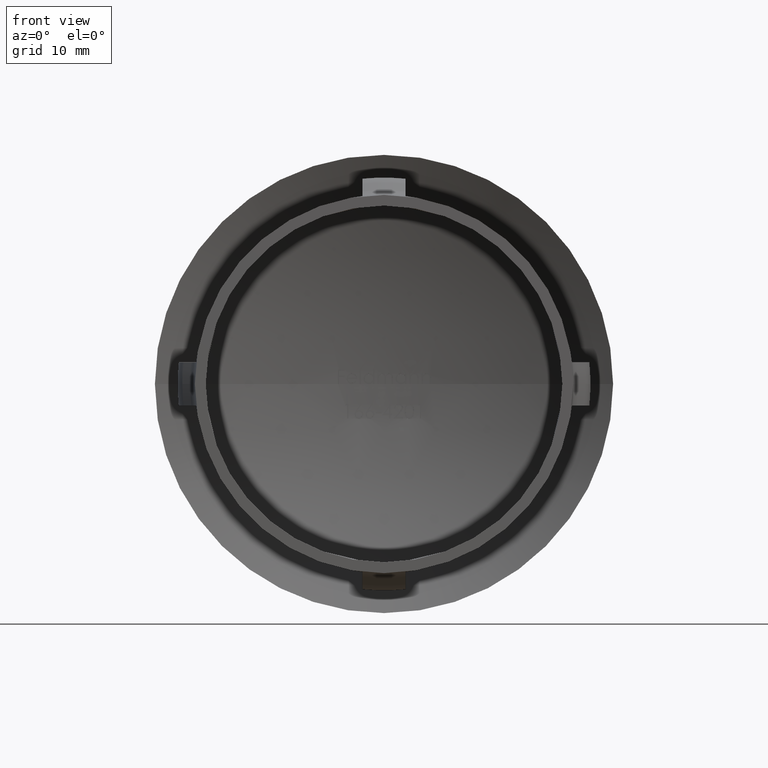
[diagram: clean part render]
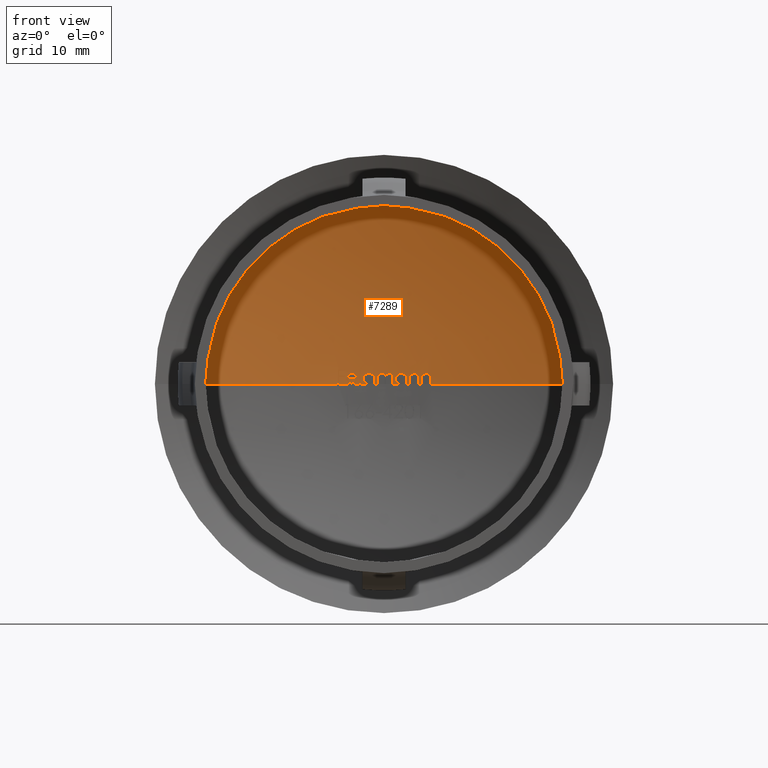
[diagram: same view with one face highlighted and labeled with its STEP entity id]
A machine part, front view. The second image highlights one B-rep face of the part: STEP entity #7289.
In plain terms, the highlighted spherical surface has radius 47.5 mm.
Its self-contained STEP definition (entity closure, byte-faithful):
#9 = VERTEX_POINT ( 'NONE', #9931 ) ;
#18 = CARTESIAN_POINT ( 'NONE',  ( 2.467748397435893800, 28.82923533561442800, 0.7923719618055555800 ) ) ;
#26 = AXIS2_PLACEMENT_3D ( 'NONE', #3749, #2525, #13219 ) ;
#45 = EDGE_CURVE ( 'NONE', #6414, #10322, #12748, .T. ) ;
#89 = CARTESIAN_POINT ( 'NONE',  ( -1.009147970085471100, 28.88287863791199300, 0.7796516092414529400 ) ) ;
#91 = DIRECTION ( 'NONE',  ( -1.000000000000000000, 0.0000000000000000000, 0.0000000000000000000 ) ) ;
#97 = CARTESIAN_POINT ( 'NONE',  ( -2.838786933995812900, 28.81509557876451300, -1.066248912121755500E-013 ) ) ;
#138 = AXIS2_PLACEMENT_3D ( 'NONE', #6692, #10884, #13069 ) ;
#139 = VERTEX_POINT ( 'NONE', #5679 ) ;
#145 = CARTESIAN_POINT ( 'NONE',  ( -3.309691565161870600, 28.77678954000749600, 0.8585386338764031700 ) ) ;
#205 = VERTEX_POINT ( 'NONE', #6241 ) ;
#252 = EDGE_CURVE ( 'NONE', #1477, #5036, #6188, .T. ) ;
#277 = CARTESIAN_POINT ( 'NONE',  ( -3.638020833333333500, 28.74559411859971200, 1.187232905982905900 ) ) ;
#289 = AXIS2_PLACEMENT_3D ( 'NONE', #11408, #5025, #2010 ) ;
#297 = DIRECTION ( 'NONE',  ( -1.000000000000000000, 0.0000000000000000000, 0.0000000000000000000 ) ) ;
#299 = CARTESIAN_POINT ( 'NONE',  ( -3.638020833333334800, -18.60000000000000500, 0.0000000000000000000 ) ) ;
#308 = ORIENTED_EDGE ( 'NONE', *, *, #13414, .T. ) ;
#322 = CARTESIAN_POINT ( 'NONE',  ( -4.200538521075421400E-015, -18.60000000000000500, 0.0000000000000000000 ) ) ;
#380 = CARTESIAN_POINT ( 'NONE',  ( -3.223401920455656100, 28.79051796776131800, 0.03580689203179332500 ) ) ;
#389 = DIRECTION ( 'NONE',  ( -2.747106200777928300E-017, -1.000000000000000000, 0.0000000000000000000 ) ) ;
#400 = DIRECTION ( 'NONE',  ( 2.742392538365254400E-017, 1.000000000000000000, 0.0000000000000000000 ) ) ;
#419 = CARTESIAN_POINT ( 'NONE',  ( -2.589916783520299400, 28.82270338909204800, 0.7934319911858973600 ) ) ;
#436 = CARTESIAN_POINT ( 'NONE',  ( -1.906564151297723600, 28.85979768474225400, 0.4308827721735417600 ) ) ;
#517 = ORIENTED_EDGE ( 'NONE', *, *, #4688, .T. ) ;
#522 = CARTESIAN_POINT ( 'NONE',  ( -2.535590277777778100, 28.83161741887379400, 0.2499019264155981600 ) ) ;
#523 = ORIENTED_EDGE ( 'NONE', *, *, #11471, .T. ) ;
#546 = EDGE_CURVE ( 'NONE', #7769, #12289, #12248, .T. ) ;
#560 = CARTESIAN_POINT ( 'NONE',  ( -2.838786933995812900, 28.81509557876451300, -1.066248912121755500E-013 ) ) ;
#567 = ORIENTED_EDGE ( 'NONE', *, *, #11790, .F. ) ;
#634 = VERTEX_POINT ( 'NONE', #18 ) ;
#645 = ORIENTED_EDGE ( 'NONE', *, *, #252, .T. ) ;
#677 = ORIENTED_EDGE ( 'NONE', *, *, #9517, .T. ) ;
#708 = CARTESIAN_POINT ( 'NONE',  ( -4.163795405982906300, -18.60000000000000500, 0.0000000000000000000 ) ) ;
#713 = CARTESIAN_POINT ( 'NONE',  ( 1.061517860138053000, 28.88621435465113400, 0.4308921622717233900 ) ) ;
#734 = CARTESIAN_POINT ( 'NONE',  ( 2.564422937968893600, 28.82222489934699900, 0.9008112399854261200 ) ) ;
#764 = CARTESIAN_POINT ( 'NONE',  ( -4.200538521075421400E-015, -18.60000000000000500, 0.6444978632478631800 ) ) ;
#810 = CARTESIAN_POINT ( 'NONE',  ( 0.05616056246658820300, 28.89143559121135500, 0.9008913857495567400 ) ) ;
#873 = DIRECTION ( 'NONE',  ( 0.0000000000000000000, 0.0000000000000000000, -1.000000000000000000 ) ) ;
#878 = DIRECTION ( 'NONE',  ( 0.0000000000000000000, 0.0000000000000000000, -1.000000000000000000 ) ) ;
#887 = CARTESIAN_POINT ( 'NONE',  ( 0.1407189002403820800, 28.89386638761483900, 0.7502357939369659300 ) ) ;
#888 = CARTESIAN_POINT ( 'NONE',  ( -0.4814565802278539800, 28.89041083991513000, 0.8246865197152429800 ) ) ;
#917 = B_SPLINE_CURVE_WITH_KNOTS ( 'NONE', 3,
 ( #10551, #4272, #12505, #3214, #10406, #13559, #12691, #13654, #8297, #4227 ),
 .UNSPECIFIED., .F., .F.,
 ( 4, 2, 2, 2, 4 ),
 ( 5.421010862427522200E-019, 0.0001082860871809553000, 0.0002165721743619100500, 0.0003248582615428648100, 0.0004331443487238195700 ),
 .UNSPECIFIED. ) ;
#954 = ORIENTED_EDGE ( 'NONE', *, *, #12047, .T. ) ;
#988 = DIRECTION ( 'NONE',  ( -2.511160551300213600E-017, -1.000000000000000000, 0.0000000000000000000 ) ) ;
#1048 = VERTEX_POINT ( 'NONE', #5578 ) ;
#1099 = CARTESIAN_POINT ( 'NONE',  ( 2.949665313008877500, 28.79844324045524200, 0.9684444658945037300 ) ) ;
#1111 = ORIENTED_EDGE ( 'NONE', *, *, #9535, .T. ) ;
#1123 = DIRECTION ( 'NONE',  ( -1.000000000000000000, 2.449293598294745100E-017, 0.0000000000000000000 ) ) ;
#1141 = CARTESIAN_POINT ( 'NONE',  ( -4.200538521075421400E-015, -18.60000000000000500, 0.9667467948717949300 ) ) ;
#1155 = CARTESIAN_POINT ( 'NONE',  ( -3.468416132478632900, 28.77076096726479500, 0.4807233239850427500 ) ) ;
#1211 = EDGE_CURVE ( 'NONE', #5076, #2098, #9890, .T. ) ;
#1266 = CARTESIAN_POINT ( 'NONE',  ( -3.216132909246866700, 28.79070967687012200, 0.1712929441667796800 ) ) ;
#1293 = EDGE_CURVE ( 'NONE', #11216, #1671, #3391, .T. ) ;
#1298 = CARTESIAN_POINT ( 'NONE',  ( -3.222889656596926100, 28.78153855384409700, 0.9241709045039938600 ) ) ;
#1331 = ORIENTED_EDGE ( 'NONE', *, *, #5796, .T. ) ;
#1333 = AXIS2_PLACEMENT_3D ( 'NONE', #322, #12983, #8868 ) ;
#1359 = CARTESIAN_POINT ( 'NONE',  ( -3.281888120453414300, 28.78591082465447600, 0.2384984754139672400 ) ) ;
#1477 = VERTEX_POINT ( 'NONE', #9938 ) ;
#1479 = VERTEX_POINT ( 'NONE', #5470 ) ;
#1488 = ORIENTED_EDGE ( 'NONE', *, *, #13074, .T. ) ;
#1531 = CARTESIAN_POINT ( 'NONE',  ( -2.711678446310811500, 28.82255849116699400, 0.04888771158751908200 ) ) ;
#1536 = ORIENTED_EDGE ( 'NONE', *, *, #12950, .F. ) ;
#1620 = DIRECTION ( 'NONE',  ( -1.833081058408135600E-017, -1.000000000000000000, 0.0000000000000000000 ) ) ;
#1650 = EDGE_CURVE ( 'NONE', #3750, #4617, #8303, .T. ) ;
#1671 = VERTEX_POINT ( 'NONE', #1901 ) ;
#1715 = AXIS2_PLACEMENT_3D ( 'NONE', #7736, #2417, #5609 ) ;
#1717 = CARTESIAN_POINT ( 'NONE',  ( 0.4952987279647409500, 28.88722985379276100, 0.9837072649572650200 ) ) ;
#1736 = ORIENTED_EDGE ( 'NONE', *, *, #8771, .T. ) ;
#1754 = CARTESIAN_POINT ( 'NONE',  ( 1.429608896359931800, 28.87848163540455800, 5.591179887410029500E-012 ) ) ;
#1767 = CARTESIAN_POINT ( 'NONE',  ( 0.7366612047201386300, 28.88610745771516300, 0.8830947029413270800 ) ) ;
#1777 = CARTESIAN_POINT ( 'NONE',  ( -0.3662401509081221800, 28.88939081263944400, 0.9346809061164530500 ) ) ;
#1800 = CARTESIAN_POINT ( 'NONE',  ( -4.200538521075421400E-015, -18.60000000000000500, 0.7801816239316239400 ) ) ;
#1806 = B_SPLINE_CURVE_WITH_KNOTS ( 'NONE', 3,
 ( #12321, #13427, #9402, #9309, #8160, #4093, #11398, #5053, #12411, #3910 ),
 .UNSPECIFIED., .F., .F.,
 ( 4, 2, 2, 2, 4 ),
 ( 0.0000000000000000000, 0.0001128519371141823900, 0.0002257038742283647300, 0.0003385558113425470600, 0.0004514077484567293400 ),
 .UNSPECIFIED. ) ;
#1819 = CARTESIAN_POINT ( 'NONE',  ( -1.896035218776474900, 28.85816656843402900, 0.6179293000872587700 ) ) ;
#1858 = CARTESIAN_POINT ( 'NONE',  ( 1.102111744730452500, 28.88646406099736200, 0.2720993001405421800 ) ) ;
#1870 = EDGE_CURVE ( 'NONE', #12149, #12116, #4644, .T. ) ;
#1891 = AXIS2_PLACEMENT_3D ( 'NONE', #6711, #3614, #2203 ) ;
#1901 = CARTESIAN_POINT ( 'NONE',  ( 0.4952987279647409500, 28.88722985379276100, 0.9837072649572650200 ) ) ;
#1925 = CARTESIAN_POINT ( 'NONE',  ( 2.799384404526823500, 28.80727140578043000, 0.9825380366775494600 ) ) ;
#1936 = B_SPLINE_CURVE_WITH_KNOTS ( 'NONE', 3,
 ( #7558, #6510, #8632, #12554, #5202, #4059, #7247, #3323, #1966, #10702 ),
 .UNSPECIFIED., .F., .F.,
 ( 4, 2, 2, 2, 4 ),
 ( 5.421010862427522200E-020, 0.0001965277937875497400, 0.0003930555875750994300, 0.0005895833813626490000, 0.0007861111751501987400 ),
 .UNSPECIFIED. ) ;
#1950 = SPHERICAL_SURFACE ( 'NONE', #289, 47.50000000000000000 ) ;
#1952 = CARTESIAN_POINT ( 'NONE',  ( -0.3662401509081221800, 28.88939081263944400, 0.9346809061164530500 ) ) ;
#1966 = CARTESIAN_POINT ( 'NONE',  ( 1.501468935670788900, 28.86615688985154900, 0.9818081976358757900 ) ) ;
#1976 = CIRCLE ( 'NONE', #4424, 47.43585371685591000 ) ;
#1997 = CARTESIAN_POINT ( 'NONE',  ( -0.4619834938707310700, 28.89015329622290900, 0.8502597468962064300 ) ) ;
#2004 = CARTESIAN_POINT ( 'NONE',  ( 0.4206739996751296400, 28.88807779150919700, 0.9781994563160438800 ) ) ;
#2010 = DIRECTION ( 'NONE',  ( -1.000000000000000000, 2.921639538487253900E-015, 0.0000000000000000000 ) ) ;
#2042 = EDGE_LOOP ( 'NONE', ( #1736, #9788, #12323, #3234, #10103, #5144, #11667, #4368, #7574, #10690, #10116, #6112, #10533, #7889, #1488, #308, #9317, #1331, #6314, #4037, #677, #2154, #11942, #954, #12972, #3976, #2585, #523, #10142, #5452, #6605, #11807, #12565, #1111, #3429, #13252, #2661, #5654, #8132, #9153, #8773, #517, #6502, #645, #11517, #1536, #9841, #12816, #4206, #3140, #12964, #4204, #9732, #2338, #7648, #6894, #567, #10771, #5496, #8997, #11481, #5397, #8939, #10945, #7126 ) ) ;
#2060 = CIRCLE ( 'NONE', #10106, 47.48516060862542100 ) ;
#2098 = VERTEX_POINT ( 'NONE', #12373 ) ;
#2114 = EDGE_CURVE ( 'NONE', #12707, #3667, #12392, .T. ) ;
#2154 = ORIENTED_EDGE ( 'NONE', *, *, #2834, .T. ) ;
#2188 = VERTEX_POINT ( 'NONE', #3122 ) ;
#2203 = DIRECTION ( 'NONE',  ( 1.000000000000000000, 0.0000000000000000000, 0.0000000000000000000 ) ) ;
#2254 = CARTESIAN_POINT ( 'NONE',  ( -3.051978641577199900, 28.79171899327971600, 0.9806630648093396200 ) ) ;
#2332 = DIRECTION ( 'NONE',  ( 0.0000000000000000000, 0.0000000000000000000, -1.000000000000000000 ) ) ;
#2338 = ORIENTED_EDGE ( 'NONE', *, *, #2114, .T. ) ;
#2375 = CARTESIAN_POINT ( 'NONE',  ( 2.077657585470083800, 28.84469137419004500, 0.9667467948717949300 ) ) ;
#2386 = VERTEX_POINT ( 'NONE', #10744 ) ;
#2389 = CARTESIAN_POINT ( 'NONE',  ( -2.554517951322536000, 28.82544508404095800, 0.7451120883522877000 ) ) ;
#2417 = DIRECTION ( 'NONE',  ( 0.0000000000000000000, -0.0000000000000000000, 1.000000000000000000 ) ) ;
#2451 = DIRECTION ( 'NONE',  ( -1.000000000000000000, 2.449293598294745100E-017, 0.0000000000000000000 ) ) ;
#2492 = CARTESIAN_POINT ( 'NONE',  ( -1.839302732424536600, 28.86388378676028300, 0.2228968924731354300 ) ) ;
#2506 = AXIS2_PLACEMENT_3D ( 'NONE', #12610, #6379, #12560 ) ;
#2525 = DIRECTION ( 'NONE',  ( 1.000000000000000000, -2.449293598294745100E-017, 0.0000000000000000000 ) ) ;
#2534 = CARTESIAN_POINT ( 'NONE',  ( -1.738051402140563300, 28.86822338836434900, 0.09419359275410951700 ) ) ;
#2537 = VERTEX_POINT ( 'NONE', #13155 ) ;
#2585 = ORIENTED_EDGE ( 'NONE', *, *, #12322, .T. ) ;
#2661 = ORIENTED_EDGE ( 'NONE', *, *, #9769, .T. ) ;
#2662 = CARTESIAN_POINT ( 'NONE',  ( -2.773214433135017000, 28.81902146684723600, 0.01692169089990973700 ) ) ;
#2690 = CIRCLE ( 'NONE', #13548, 47.50000000000000000 ) ;
#2696 = CIRCLE ( 'NONE', #138, 47.36435823231860100 ) ;
#2714 = DIRECTION ( 'NONE',  ( -1.000000000000000000, 2.449293598294745100E-017, 0.0000000000000000000 ) ) ;
#2725 = EDGE_CURVE ( 'NONE', #5611, #5076, #5678, .T. ) ;
#2740 = VERTEX_POINT ( 'NONE', #5008 ) ;
#2757 = CARTESIAN_POINT ( 'NONE',  ( -2.568826679403050800, 28.83015128766613000, 0.1909471095671796700 ) ) ;
#2763 = CARTESIAN_POINT ( 'NONE',  ( 4.012783273534847900, 28.72003881028099300, 0.9809842367063308400 ) ) ;
#2834 = EDGE_CURVE ( 'NONE', #5939, #13381, #4483, .T. ) ;
#2838 = CARTESIAN_POINT ( 'NONE',  ( 1.822508010063499800, 28.85613302754297400, 0.9194200936915845100 ) ) ;
#2875 = AXIS2_PLACEMENT_3D ( 'NONE', #13498, #10190, #2952 ) ;
#2930 = VERTEX_POINT ( 'NONE', #3254 ) ;
#2952 = DIRECTION ( 'NONE',  ( -2.745262331805080200E-017, -1.000000000000000000, 0.0000000000000000000 ) ) ;
#2961 = CIRCLE ( 'NONE', #1333, 47.50000000000000000 ) ;
#3000 = CARTESIAN_POINT ( 'NONE',  ( 3.054323520175224800, 28.79283462581507500, 0.9185128902756341000 ) ) ;
#3021 = CARTESIAN_POINT ( 'NONE',  ( -1.710064290470956400, 28.86099744527328100, 0.8852969236562362500 ) ) ;
#3042 = CARTESIAN_POINT ( 'NONE',  ( 2.893454473597709200, 28.80165012120306800, 0.9809784692917453700 ) ) ;
#3068 = CARTESIAN_POINT ( 'NONE',  ( -1.654072426098029100, 28.86225846881458100, 0.9232147369909197200 ) ) ;
#3122 = CARTESIAN_POINT ( 'NONE',  ( -3.638020833333333500, 28.75609176146719300, 0.6444978632478631800 ) ) ;
#3140 = ORIENTED_EDGE ( 'NONE', *, *, #9954, .F. ) ;
#3157 = VERTEX_POINT ( 'NONE', #3760 ) ;
#3163 = VERTEX_POINT ( 'NONE', #4995 ) ;
#3214 = CARTESIAN_POINT ( 'NONE',  ( 3.686416121105987800, 28.74825584716841900, 0.8968390932620010600 ) ) ;
#3229 = DIRECTION ( 'NONE',  ( -2.904862207577519400E-015, -1.000000000000000000, -0.0000000000000000000 ) ) ;
#3234 = ORIENTED_EDGE ( 'NONE', *, *, #8866, .T. ) ;
#3235 = CARTESIAN_POINT ( 'NONE',  ( -3.174025732528813000, 28.79386180068317800, 0.01316570502961598100 ) ) ;
#3249 = CARTESIAN_POINT ( 'NONE',  ( -0.8904246794871805100, 28.89165341289098200, 0.0000000000000000000 ) ) ;
#3251 = CIRCLE ( 'NONE', #13269, 47.50000000000000000 ) ;
#3254 = CARTESIAN_POINT ( 'NONE',  ( -2.589916783520299400, 28.82270338909204800, 0.7934319911858973600 ) ) ;
#3275 = EDGE_CURVE ( 'NONE', #10322, #11800, #7947, .T. ) ;
#3277 = AXIS2_PLACEMENT_3D ( 'NONE', #10784, #11756, #9664 ) ;
#3283 = CARTESIAN_POINT ( 'NONE',  ( -3.421962229536248400, 28.77135035249483900, 0.7061520121416911000 ) ) ;
#3286 = CARTESIAN_POINT ( 'NONE',  ( 3.468416132478629300, 28.77320011918089900, 0.0000000000000000000 ) ) ;
#3303 = VERTEX_POINT ( 'NONE', #11971 ) ;
#3320 = CARTESIAN_POINT ( 'NONE',  ( -1.009147970085471300, 28.86989163757531400, 1.356837606837606900 ) ) ;
#3323 = CARTESIAN_POINT ( 'NONE',  ( 1.435012198105503100, 28.86841150338515000, 0.9720655739367317600 ) ) ;
#3391 = B_SPLINE_CURVE_WITH_KNOTS ( 'NONE', 3,
 ( #9408, #8350, #5155, #5198, #5108, #2004, #6282, #11449 ),
 .UNSPECIFIED., .F., .F.,
 ( 4, 2, 2, 4 ),
 ( 1.212174879515270100E-019, 0.0002223540388317608200, 0.0003335310582476410100, 0.0004447080776635212700 ),
 .UNSPECIFIED. ) ;
#3429 = ORIENTED_EDGE ( 'NONE', *, *, #12752, .F. ) ;
#3450 = VERTEX_POINT ( 'NONE', #8968 ) ;
#3459 = DIRECTION ( 'NONE',  ( -2.747106200777928300E-017, -1.000000000000000000, 0.0000000000000000000 ) ) ;
#3491 = CARTESIAN_POINT ( 'NONE',  ( -1.538473368597382800, 28.87507872235828500, 5.604461258143858500E-012 ) ) ;
#3561 = VERTEX_POINT ( 'NONE', #3840 ) ;
#3586 = DIRECTION ( 'NONE',  ( 1.000000000000000000, -2.449293598294745100E-017, 0.0000000000000000000 ) ) ;
#3614 = DIRECTION ( 'NONE',  ( 0.0000000000000000000, -0.0000000000000000000, 1.000000000000000000 ) ) ;
#3625 = EDGE_CURVE ( 'NONE', #10683, #3303, #6461, .T. ) ;
#3658 = B_SPLINE_CURVE_WITH_KNOTS ( 'NONE', 3,
 ( #4064, #6004, #734, #6104, #8311, #9374, #1925, #4935 ),
 .UNSPECIFIED., .F., .F.,
 ( 4, 2, 2, 4 ),
 ( 4.848699518061080300E-019, 0.0002162750251688132800, 0.0003244125377532189600, 0.0004325500503376248300 ),
 .UNSPECIFIED. ) ;
#3667 = VERTEX_POINT ( 'NONE', #3320 ) ;
#3688 = EDGE_CURVE ( 'NONE', #9, #634, #1976, .T. ) ;
#3700 = VERTEX_POINT ( 'NONE', #10701 ) ;
#3713 = DIRECTION ( 'NONE',  ( -2.742740996606732100E-017, -1.000000000000000000, 0.0000000000000000000 ) ) ;
#3749 = CARTESIAN_POINT ( 'NONE',  ( -2.264222756410258600, -18.60000000000000500, 0.0000000000000000000 ) ) ;
#3750 = VERTEX_POINT ( 'NONE', #6119 ) ;
#3757 = VERTEX_POINT ( 'NONE', #4898 ) ;
#3760 = CARTESIAN_POINT ( 'NONE',  ( 3.954969618055553100, 28.72484057381627300, 0.9837072649572650200 ) ) ;
#3764 = CARTESIAN_POINT ( 'NONE',  ( 3.197048611111107200, 28.79228713807967200, 0.0000000000000000000 ) ) ;
#3821 = DIRECTION ( 'NONE',  ( 0.0000000000000000000, -0.0000000000000000000, 1.000000000000000000 ) ) ;
#3840 = CARTESIAN_POINT ( 'NONE',  ( -2.996968065571581800, 28.80525104608459900, 0.1017628205128205100 ) ) ;
#3848 = CARTESIAN_POINT ( 'NONE',  ( 4.218608881598889600, 28.70416514518978300, 0.8790003980294356400 ) ) ;
#3861 = CARTESIAN_POINT ( 'NONE',  ( -4.200538521075421400E-015, -18.60000000000000500, 1.356837606837606900 ) ) ;
#3863 = CARTESIAN_POINT ( 'NONE',  ( -4.200538521075421400E-015, -18.60000000000000500, 1.322916666666666700 ) ) ;
#3876 = CARTESIAN_POINT ( 'NONE',  ( 2.349025106837602900, 28.84188108673017200, 0.0000000000000000000 ) ) ;
#3877 = VERTEX_POINT ( 'NONE', #6260 ) ;
#3894 = CARTESIAN_POINT ( 'NONE',  ( 4.316439636752133600, 28.70089428961911100, 0.4937086838942307800 ) ) ;
#3901 = CIRCLE ( 'NONE', #10832, 47.50000000000000000 ) ;
#3905 = AXIS2_PLACEMENT_3D ( 'NONE', #1141, #2332, #91 ) ;
#3910 = CARTESIAN_POINT ( 'NONE',  ( -2.589916783520299400, 28.82270338909204800, 0.7934319911858973600 ) ) ;
#3925 = DIRECTION ( 'NONE',  ( -0.4649210893991445600, 1.138728247977543600E-017, -0.8853521223964580000 ) ) ;
#3937 = DIRECTION ( 'NONE',  ( -1.000000000000000000, 0.0000000000000000000, 0.0000000000000000000 ) ) ;
#3960 = CARTESIAN_POINT ( 'NONE',  ( -0.1669546274038487300, 28.88951932973483100, 0.9837072649572652400 ) ) ;
#3976 = ORIENTED_EDGE ( 'NONE', *, *, #5794, .T. ) ;
#3995 = CARTESIAN_POINT ( 'NONE',  ( 1.230033873877310900, 28.88410331670711200, 0.09418809877709635700 ) ) ;
#4004 = CARTESIAN_POINT ( 'NONE',  ( -1.908052884615385700, 28.85917314255757300, 0.4860234708867521300 ) ) ;
#4032 = CIRCLE ( 'NONE', #4299, 47.50000000000000000 ) ;
#4033 = EDGE_CURVE ( 'NONE', #2386, #4521, #6298, .T. ) ;
#4037 = ORIENTED_EDGE ( 'NONE', *, *, #9349, .T. ) ;
#4059 = CARTESIAN_POINT ( 'NONE',  ( 1.258023793064449300, 28.87513001890680900, 0.8853005678289387300 ) ) ;
#4064 = CARTESIAN_POINT ( 'NONE',  ( 2.467748397435893800, 28.82923533561442800, 0.7923719618055555800 ) ) ;
#4084 = EDGE_CURVE ( 'NONE', #2930, #6585, #13439, .T. ) ;
#4087 = VERTEX_POINT ( 'NONE', #11924 ) ;
#4093 = CARTESIAN_POINT ( 'NONE',  ( -2.727493154466645200, 28.81270710728153600, 0.9205358734192333700 ) ) ;
#4111 = DIRECTION ( 'NONE',  ( -1.224646799147353200E-016, 3.557430204473923300E-031, -1.000000000000000000 ) ) ;
#4146 = CARTESIAN_POINT ( 'NONE',  ( -0.6190571581196617800, -18.60000000000000500, 0.0000000000000000000 ) ) ;
#4154 = AXIS2_PLACEMENT_3D ( 'NONE', #10437, #11299, #12355 ) ;
#4157 = CARTESIAN_POINT ( 'NONE',  ( -4.163795405982905400, 28.71276181244743200, 0.6444978632478631800 ) ) ;
#4185 = DIRECTION ( 'NONE',  ( -1.833611199108655500E-017, -1.000000000000000000, 0.0000000000000000000 ) ) ;
#4204 = ORIENTED_EDGE ( 'NONE', *, *, #12484, .T. ) ;
#4206 = ORIENTED_EDGE ( 'NONE', *, *, #12585, .T. ) ;
#4225 = DIRECTION ( 'NONE',  ( -2.510923277412657200E-017, -1.000000000000000000, 0.0000000000000000000 ) ) ;
#4227 = CARTESIAN_POINT ( 'NONE',  ( 3.954969618055553100, 28.72484057381627300, 0.9837072649572650200 ) ) ;
#4241 = CARTESIAN_POINT ( 'NONE',  ( -1.400298811431624800, 28.86916349858688200, 0.9837072649572650200 ) ) ;
#4248 = CARTESIAN_POINT ( 'NONE',  ( 2.835578592414526300, 28.80508215437571100, 0.9837072649572650200 ) ) ;
#4272 = CARTESIAN_POINT ( 'NONE',  ( 3.609712475006252100, 28.75554883849098100, 0.8205348883732053200 ) ) ;
#4273 = B_SPLINE_CURVE_WITH_KNOTS ( 'NONE', 3,
 ( #4241, #5386, #4461, #9628, #7513, #11633, #11766, #6467, #6425, #89 ),
 .UNSPECIFIED., .F., .F.,
 ( 4, 2, 2, 2, 4 ),
 ( 2.168404344971008900E-019, 0.0001141465138059907000, 0.0002282930276119811900, 0.0003424395414179717000, 0.0004565860552239621600 ),
 .UNSPECIFIED. ) ;
#4277 = CIRCLE ( 'NONE', #3277, 47.30655381248387000 ) ;
#4295 = CARTESIAN_POINT ( 'NONE',  ( -3.357113047542735500, 28.77440422936886200, 0.8035022702991453400 ) ) ;
#4299 = AXIS2_PLACEMENT_3D ( 'NONE', #12527, #6301, #8320 ) ;
#4332 = DIRECTION ( 'NONE',  ( -1.000000000000000000, 0.0000000000000000000, 1.224646799147353200E-016 ) ) ;
#4336 = CARTESIAN_POINT ( 'NONE',  ( -3.357113047542735500, 28.77440422936886200, 0.8035022702991453400 ) ) ;
#4368 = ORIENTED_EDGE ( 'NONE', *, *, #8048, .T. ) ;
#4373 = EDGE_CURVE ( 'NONE', #634, #7390, #3658, .T. ) ;
#4424 = AXIS2_PLACEMENT_3D ( 'NONE', #12216, #4754, #3713 ) ;
#4429 = CARTESIAN_POINT ( 'NONE',  ( -3.333772037803320200, 28.77558544985225800, 0.8313787213092944700 ) ) ;
#4454 = VERTEX_POINT ( 'NONE', #9583 ) ;
#4457 = VERTEX_POINT ( 'NONE', #6330 ) ;
#4461 = CARTESIAN_POINT ( 'NONE',  ( -1.323764277371486400, 28.87145050147497500, 0.9800451634569808900 ) ) ;
#4475 = VERTEX_POINT ( 'NONE', #4157 ) ;
#4483 = CIRCLE ( 'NONE', #7590, 47.30347079086561000 ) ;
#4487 = B_SPLINE_CURVE_WITH_KNOTS ( 'NONE', 3,
 ( #4248, #5304, #3042, #1099, #8499, #3000, #10378, #12479, #13538, #9548, #5441, #11684 ),
 .UNSPECIFIED., .F., .F.,
 ( 4, 2, 2, 2, 2, 4 ),
 ( 0.0000000000000000000, 8.641339010028254900E-005, 0.0001728267802005651000, 0.0003456535604011304700, 0.0005184803406016959200, 0.0006913071208022612600 ),
 .UNSPECIFIED. ) ;
#4495 = DIRECTION ( 'NONE',  ( -1.000000000000000000, 0.0000000000000000000, 0.0000000000000000000 ) ) ;
#4521 = VERTEX_POINT ( 'NONE', #7282 ) ;
#4617 = VERTEX_POINT ( 'NONE', #10686 ) ;
#4622 = CARTESIAN_POINT ( 'NONE',  ( -3.638020833333333500, 28.75405073539023000, 0.7801816239316239400 ) ) ;
#4624 = CARTESIAN_POINT ( 'NONE',  ( -2.661128317594597900, 28.82461231529718000, 0.2753909030455860600 ) ) ;
#4644 = CIRCLE ( 'NONE', #9713, 47.31715130708013800 ) ;
#4688 = EDGE_CURVE ( 'NONE', #11585, #3561, #12570, .T. ) ;
#4708 = CARTESIAN_POINT ( 'NONE',  ( -2.853377123046937100, 28.81412394168429400, 0.1192108882755267100 ) ) ;
#4744 = VERTEX_POINT ( 'NONE', #4622 ) ;
#4754 = DIRECTION ( 'NONE',  ( -1.000000000000000000, 2.449293598294745100E-017, 0.0000000000000000000 ) ) ;
#4758 = CARTESIAN_POINT ( 'NONE',  ( -2.641063201121795600, 28.82553725708261900, 0.3052884615384616200 ) ) ;
#4759 = VERTEX_POINT ( 'NONE', #3764 ) ;
#4796 = CARTESIAN_POINT ( 'NONE',  ( 0.8225827991452965300, 28.89287691368622300, 0.0000000000000000000 ) ) ;
#4828 = DIRECTION ( 'NONE',  ( 0.0000000000000000000, -0.0000000000000000000, 1.000000000000000000 ) ) ;
#4859 = AXIS2_PLACEMENT_3D ( 'NONE', #4146, #11496, #12549 ) ;
#4864 = CARTESIAN_POINT ( 'NONE',  ( 0.6005985209493743800, 28.88632366653369100, 0.9690481123374515800 ) ) ;
#4884 = VERTEX_POINT ( 'NONE', #3249 ) ;
#4898 = CARTESIAN_POINT ( 'NONE',  ( -1.908052884615385700, 28.85917314255757300, 0.4860234708867521300 ) ) ;
#4915 = CARTESIAN_POINT ( 'NONE',  ( 0.7916504732044255000, 28.88686425738943000, 0.7898987271288869800 ) ) ;
#4921 = DIRECTION ( 'NONE',  ( 2.283046184763154600E-017, 1.000000000000000000, 0.0000000000000000000 ) ) ;
#4935 = CARTESIAN_POINT ( 'NONE',  ( 2.835578592414526300, 28.80508215437571100, 0.9837072649572650200 ) ) ;
#4970 = EDGE_CURVE ( 'NONE', #8742, #9, #5933, .T. ) ;
#4995 = CARTESIAN_POINT ( 'NONE',  ( 16.49999999999999300, 25.94211490264017800, -2.020667218593116900E-015 ) ) ;
#5001 = CARTESIAN_POINT ( 'NONE',  ( 1.128773686231828500, 28.88609442654038200, 0.2229051571859271600 ) ) ;
#5008 = CARTESIAN_POINT ( 'NONE',  ( -16.49999999999987600, 25.94211490264027000, 0.0000000000000000000 ) ) ;
#5022 = B_SPLINE_CURVE_WITH_KNOTS ( 'NONE', 3,
 ( #6474, #3235, #380, #10941, #5395, #9915, #12714, #11641, #11927, #8593 ),
 .UNSPECIFIED., .F., .F.,
 ( 4, 2, 2, 2, 4 ),
 ( 0.0001422578347680728300, 0.0002991746425056234400, 0.0004560914502431740600, 0.0006130082579807246300, 0.0007699250657182753000 ),
 .UNSPECIFIED. ) ;
#5025 = DIRECTION ( 'NONE',  ( 0.0000000000000000000, 0.0000000000000000000, -1.000000000000000000 ) ) ;
#5036 = VERTEX_POINT ( 'NONE', #5813 ) ;
#5049 = AXIS2_PLACEMENT_3D ( 'NONE', #8100, #8149, #9215 ) ;
#5053 = CARTESIAN_POINT ( 'NONE',  ( -2.638657815983067600, 28.81903138479555800, 0.8510859277315370200 ) ) ;
#5058 = CARTESIAN_POINT ( 'NONE',  ( -1.009147970085472400, -18.60000000000000500, 0.0000000000000000000 ) ) ;
#5067 = CARTESIAN_POINT ( 'NONE',  ( -4.200538521075421400E-015, -18.60000000000000500, 0.0000000000000000000 ) ) ;
#5076 = VERTEX_POINT ( 'NONE', #13091 ) ;
#5090 = AXIS2_PLACEMENT_3D ( 'NONE', #764, #6086, #11440 ) ;
#5099 = DIRECTION ( 'NONE',  ( -1.000000000000000000, 2.449293598294745100E-017, 0.0000000000000000000 ) ) ;
#5108 = CARTESIAN_POINT ( 'NONE',  ( 0.3501476158959008200, 28.88911329239172700, 0.9554519727515700100 ) ) ;
#5112 = EDGE_CURVE ( 'NONE', #5036, #6909, #13264, .T. ) ;
#5139 = AXIS2_PLACEMENT_3D ( 'NONE', #7484, #12626, #6348 ) ;
#5144 = ORIENTED_EDGE ( 'NONE', *, *, #3275, .T. ) ;
#5155 = CARTESIAN_POINT ( 'NONE',  ( 0.2241133967070739800, 28.89145203992796600, 0.8759324853526808700 ) ) ;
#5177 = EDGE_CURVE ( 'NONE', #3667, #205, #5770, .T. ) ;
#5198 = CARTESIAN_POINT ( 'NONE',  ( 0.3162070829082381800, 28.88969277695234100, 0.9383327661137813600 ) ) ;
#5202 = CARTESIAN_POINT ( 'NONE',  ( 1.163387861298872400, 28.87916685363140700, 0.7934701258597572900 ) ) ;
#5280 = CARTESIAN_POINT ( 'NONE',  ( -0.8904246794871817400, -18.60000000000000500, 0.0000000000000000000 ) ) ;
#5304 = CARTESIAN_POINT ( 'NONE',  ( 2.864567348710757200, 28.80337034580360700, 0.9826383791018691300 ) ) ;
#5311 = CARTESIAN_POINT ( 'NONE',  ( 0.8225827991452965300, 28.88998992933809600, 0.5236545138888890600 ) ) ;
#5325 = DIRECTION ( 'NONE',  ( -1.000000000000000000, 2.449293598294745100E-017, 0.0000000000000000000 ) ) ;
#5330 = AXIS2_PLACEMENT_3D ( 'NONE', #9401, #5325, #988 ) ;
#5351 = EDGE_CURVE ( 'NONE', #7390, #10008, #4487, .T. ) ;
#5386 = CARTESIAN_POINT ( 'NONE',  ( -1.361916298919678500, 28.87031962027139200, 0.9825553545705222300 ) ) ;
#5393 = AXIS2_PLACEMENT_3D ( 'NONE', #5058, #7050, #4921 ) ;
#5395 = CARTESIAN_POINT ( 'NONE',  ( -3.344763534565541100, 28.78191892152417400, 0.1382151894846830900 ) ) ;
#5397 = ORIENTED_EDGE ( 'NONE', *, *, #1211, .T. ) ;
#5400 = CARTESIAN_POINT ( 'NONE',  ( -3.253277092900682500, 28.77983520048665500, 0.9048416944740758100 ) ) ;
#5437 = EDGE_CURVE ( 'NONE', #13139, #2740, #2961, .T. ) ;
#5441 = CARTESIAN_POINT ( 'NONE',  ( 3.196878018885631600, 28.78912244131992900, 0.5517361118582749800 ) ) ;
#5452 = ORIENTED_EDGE ( 'NONE', *, *, #1870, .T. ) ;
#5468 = CARTESIAN_POINT ( 'NONE',  ( -3.307475868296349200, 28.78391375480696400, 0.2783879010358431500 ) ) ;
#5470 = CARTESIAN_POINT ( 'NONE',  ( -2.145499465811966800, 28.85152086121371100, 0.0000000000000000000 ) ) ;
#5492 = CARTESIAN_POINT ( 'NONE',  ( -3.015601879631399000, 28.79400788191499700, 0.9825949004298544200 ) ) ;
#5496 = ORIENTED_EDGE ( 'NONE', *, *, #3625, .T. ) ;
#5515 = CIRCLE ( 'NONE', #7651, 47.45152086121370900 ) ;
#5523 = CARTESIAN_POINT ( 'NONE',  ( -2.264222756410257300, 28.84600399727414200, 0.0000000000000000000 ) ) ;
#5531 = AXIS2_PLACEMENT_3D ( 'NONE', #3863, #5937, #13340 ) ;
#5575 = CIRCLE ( 'NONE', #12200, 47.48061701061467200 ) ;
#5578 = CARTESIAN_POINT ( 'NONE',  ( -4.163795405982905400, 28.71715130708013700, 0.0000000000000000000 ) ) ;
#5582 = DIRECTION ( 'NONE',  ( -0.8853521223964580000, 0.0000000000000000000, 0.4649210893991445000 ) ) ;
#5609 = DIRECTION ( 'NONE',  ( 1.000000000000000000, 0.0000000000000000000, 0.0000000000000000000 ) ) ;
#5611 = VERTEX_POINT ( 'NONE', #10175 ) ;
#5642 = CARTESIAN_POINT ( 'NONE',  ( -1.900105780773648100, 28.86052746535489900, 0.3753518752688545500 ) ) ;
#5654 = ORIENTED_EDGE ( 'NONE', *, *, #4033, .T. ) ;
#5673 = CARTESIAN_POINT ( 'NONE',  ( -2.526542086105224300, 28.82775630992314200, 0.6913960172085900100 ) ) ;
#5678 = B_SPLINE_CURVE_WITH_KNOTS ( 'NONE', 3,
 ( #8388, #888, #1997, #11438, #13470, #1952 ),
 .UNSPECIFIED., .F., .F.,
 ( 4, 2, 4 ),
 ( 0.0000000000000000000, 9.627249594139071300E-005, 0.0001925449918827814300 ),
 .UNSPECIFIED. ) ;
#5679 = CARTESIAN_POINT ( 'NONE',  ( -3.638020833333333500, 28.74199716857420100, 1.322916666666666700 ) ) ;
#5703 = B_SPLINE_CURVE_WITH_KNOTS ( 'NONE', 3,
 ( #1717, #10117, #5887, #4864, #10165, #11223, #1767, #4915, #12270, #5985, #9173, #11048 ),
 .UNSPECIFIED., .F., .F.,
 ( 4, 2, 2, 2, 2, 4 ),
 ( 1.084202172485504300E-019, 7.969940963806352500E-005, 0.0001593988192761270000, 0.0003187976385522540500, 0.0004781964578283810100, 0.0006375952771045079800 ),
 .UNSPECIFIED. ) ;
#5753 = EDGE_CURVE ( 'NONE', #3700, #10683, #9709, .T. ) ;
#5770 = CIRCLE ( 'NONE', #11999, 47.48061701061467200 ) ;
#5778 = CARTESIAN_POINT ( 'NONE',  ( 1.718639001019850500, 28.85911524921915500, 0.9644292528052395000 ) ) ;
#5794 = EDGE_CURVE ( 'NONE', #13139, #4457, #4277, .T. ) ;
#5796 = EDGE_CURVE ( 'NONE', #12289, #5860, #8578, .T. ) ;
#5813 = CARTESIAN_POINT ( 'NONE',  ( -2.535590277777778100, 28.83161741887379400, 0.2499019264155981600 ) ) ;
#5860 = VERTEX_POINT ( 'NONE', #8982 ) ;
#5879 = EDGE_CURVE ( 'NONE', #3561, #1477, #6370, .T. ) ;
#5887 = CARTESIAN_POINT ( 'NONE',  ( 0.5487580481609859500, 28.88670362298226000, 0.9810972519641776300 ) ) ;
#5905 = DIRECTION ( 'NONE',  ( 1.000000000000000000, 0.0000000000000000000, 0.0000000000000000000 ) ) ;
#5933 = CIRCLE ( 'NONE', #9632, 47.49016109295277500 ) ;
#5937 = DIRECTION ( 'NONE',  ( 0.0000000000000000000, 0.0000000000000000000, -1.000000000000000000 ) ) ;
#5939 = VERTEX_POINT ( 'NONE', #9120 ) ;
#5953 = CARTESIAN_POINT ( 'NONE',  ( -1.009147970085471100, 28.88287863791199300, 0.7796516092414529400 ) ) ;
#5972 = CARTESIAN_POINT ( 'NONE',  ( 4.314287152944412900, 28.69977303040549500, 0.6097391370073789200 ) ) ;
#5985 = CARTESIAN_POINT ( 'NONE',  ( 0.8204343173803238000, 28.88875316661704700, 0.6309343921867814900 ) ) ;
#5990 = EDGE_CURVE ( 'NONE', #6585, #11585, #13493, .T. ) ;
#6004 = CARTESIAN_POINT ( 'NONE',  ( 2.512868172038369000, 28.82594729505777700, 0.8486649656428989500 ) ) ;
#6006 = CARTESIAN_POINT ( 'NONE',  ( 2.077657585470082500, -18.60000000000000500, 0.0000000000000000000 ) ) ;
#6038 = CARTESIAN_POINT ( 'NONE',  ( 0.07947432618185289200, 28.89189141683791100, 0.8747217767707286000 ) ) ;
#6077 = CARTESIAN_POINT ( 'NONE',  ( 1.067973578301113300, 28.88654009670381800, 0.3753657197922302100 ) ) ;
#6086 = DIRECTION ( 'NONE',  ( 0.0000000000000000000, -0.0000000000000000000, 1.000000000000000000 ) ) ;
#6104 = CARTESIAN_POINT ( 'NONE',  ( 2.659421658845358700, 28.81597498985560100, 0.9508297832051577600 ) ) ;
#6112 = ORIENTED_EDGE ( 'NONE', *, *, #3688, .T. ) ;
#6119 = CARTESIAN_POINT ( 'NONE',  ( 1.429608896359931800, 28.87848163540455800, 5.591179887410029500E-012 ) ) ;
#6144 = CARTESIAN_POINT ( 'NONE',  ( 1.854575771981559900, 28.85530776331701100, 0.8976313515521350300 ) ) ;
#6188 = CIRCLE ( 'NONE', #12165, 47.49034644746491600 ) ;
#6199 = CIRCLE ( 'NONE', #9592, 47.49736483238844900 ) ;
#6206 = CIRCLE ( 'NONE', #2506, 47.49016109295277500 ) ;
#6228 = CARTESIAN_POINT ( 'NONE',  ( 0.1407189002403820800, 28.89386638761483900, 0.7502357939369659300 ) ) ;
#6241 = CARTESIAN_POINT ( 'NONE',  ( -0.8904246794871805100, 28.87226701558322300, 1.356837606837606900 ) ) ;
#6245 = AXIS2_PLACEMENT_3D ( 'NONE', #5280, #5099, #12589 ) ;
#6260 = CARTESIAN_POINT ( 'NONE',  ( -3.468416132478632900, 28.77076096726479500, 0.4807233239850427500 ) ) ;
#6282 = CARTESIAN_POINT ( 'NONE',  ( 0.4577561397715339500, 28.88765197748507400, 0.9822325491766236100 ) ) ;
#6298 = B_SPLINE_CURVE_WITH_KNOTS ( 'NONE', 3,
 ( #4295, #4429, #145, #5400, #1298, #11778, #8600, #2254, #5492, #12856 ),
 .UNSPECIFIED., .F., .F.,
 ( 4, 2, 2, 2, 4 ),
 ( 0.0000000000000000000, 0.0001088500035423338800, 0.0002177000070846677700, 0.0003265500106270016100, 0.0004354000141693356400 ),
 .UNSPECIFIED. ) ;
#6301 = DIRECTION ( 'NONE',  ( -1.224646799147353200E-016, 3.557430204473923300E-031, -1.000000000000000000 ) ) ;
#6314 = ORIENTED_EDGE ( 'NONE', *, *, #12223, .T. ) ;
#6318 = B_SPLINE_CURVE_WITH_KNOTS ( 'NONE', 3,
 ( #3960, #12454, #8205, #8340, #13517, #810, #6038, #7278, #9224, #6228 ),
 .UNSPECIFIED., .F., .F.,
 ( 4, 2, 2, 2, 4 ),
 ( 5.421010862427522200E-020, 0.0001032698195442989600, 0.0002065396390885979600, 0.0003098094586328969300, 0.0004130792781771959700 ),
 .UNSPECIFIED. ) ;
#6330 = CARTESIAN_POINT ( 'NONE',  ( -4.282518696581195900, 28.68805266773508900, 1.322916666666666700 ) ) ;
#6348 = DIRECTION ( 'NONE',  ( 2.741369315985323000E-017, 1.000000000000000000, 0.0000000000000000000 ) ) ;
#6370 = B_SPLINE_CURVE_WITH_KNOTS ( 'NONE', 3,
 ( #13146, #10995, #4708, #11085, #10961, #12129, #4624, #4758 ),
 .UNSPECIFIED., .F., .F.,
 ( 4, 2, 2, 4 ),
 ( 0.0000000000000000000, 0.0002140826069531539000, 0.0003211239104297311500, 0.0004281652139063084000 ),
 .UNSPECIFIED. ) ;
#6379 = DIRECTION ( 'NONE',  ( 0.0000000000000000000, 0.0000000000000000000, -1.000000000000000000 ) ) ;
#6401 = AXIS2_PLACEMENT_3D ( 'NONE', #6006, #10281, #13355 ) ;
#6414 = VERTEX_POINT ( 'NONE', #9227 ) ;
#6423 = AXIS2_PLACEMENT_3D ( 'NONE', #9239, #4828, #5905 ) ;
#6425 = CARTESIAN_POINT ( 'NONE',  ( -1.032804054451714100, 28.88187678686539800, 0.8100475987578522600 ) ) ;
#6461 = CIRCLE ( 'NONE', #3905, 47.49016109295277500 ) ;
#6467 = CARTESIAN_POINT ( 'NONE',  ( -1.057057731336118700, 28.88082428749644100, 0.8399104839468257700 ) ) ;
#6474 = CARTESIAN_POINT ( 'NONE',  ( -3.123383891020631100, 28.79719900025012100, 4.236654243709248400E-012 ) ) ;
#6502 = ORIENTED_EDGE ( 'NONE', *, *, #5879, .T. ) ;
#6508 = CARTESIAN_POINT ( 'NONE',  ( -4.163795405982905400, 28.71071891707834600, 0.7801816239316239400 ) ) ;
#6510 = CARTESIAN_POINT ( 'NONE',  ( 1.061893018835302400, 28.88496480821645900, 0.5521576783649890800 ) ) ;
#6523 = CIRCLE ( 'NONE', #1715, 47.50000000000000000 ) ;
#6581 = CIRCLE ( 'NONE', #5330, 47.49287691368622400 ) ;
#6585 = VERTEX_POINT ( 'NONE', #6722 ) ;
#6605 = ORIENTED_EDGE ( 'NONE', *, *, #9618, .T. ) ;
#6692 = CARTESIAN_POINT ( 'NONE',  ( 3.587139423076918900, -18.60000000000000500, 0.0000000000000000000 ) ) ;
#6696 = VERTEX_POINT ( 'NONE', #4796 ) ;
#6711 = CARTESIAN_POINT ( 'NONE',  ( -4.200538521075421400E-015, -18.60000000000000500, 0.0000000000000000000 ) ) ;
#6722 = CARTESIAN_POINT ( 'NONE',  ( -2.484708867521367500, 28.83275787357273500, 0.4579326923076923500 ) ) ;
#6726 = CARTESIAN_POINT ( 'NONE',  ( -3.347557778944129300, 28.78013256550013900, 0.4111982731829501000 ) ) ;
#6731 = CIRCLE ( 'NONE', #7121, 47.31715130708013800 ) ;
#6756 = CARTESIAN_POINT ( 'NONE',  ( 1.958934294871793600, 28.84974159110858200, 0.9667467948717949300 ) ) ;
#6765 = CARTESIAN_POINT ( 'NONE',  ( -0.6190571581196605600, 28.88612606719551200, 0.9667467948717949300 ) ) ;
#6894 = ORIENTED_EDGE ( 'NONE', *, *, #10442, .T. ) ;
#6909 = VERTEX_POINT ( 'NONE', #97 ) ;
#6943 = CARTESIAN_POINT ( 'NONE',  ( 4.297384779906313000, 28.69968770997477800, 0.7248522424781995700 ) ) ;
#7050 = DIRECTION ( 'NONE',  ( 1.000000000000000000, -2.449293598294745100E-017, 0.0000000000000000000 ) ) ;
#7051 = CIRCLE ( 'NONE', #9935, 47.49359237448436500 ) ;
#7102 = CARTESIAN_POINT ( 'NONE',  ( -0.1669546274038487300, 28.88951932973483100, 0.9837072649572652400 ) ) ;
#7121 = AXIS2_PLACEMENT_3D ( 'NONE', #708, #2714, #1620 ) ;
#7126 = ORIENTED_EDGE ( 'NONE', *, *, #12423, .T. ) ;
#7173 = CARTESIAN_POINT ( 'NONE',  ( -4.282518696581195900, 28.70655381248386800, 0.0000000000000000000 ) ) ;
#7244 = VERTEX_POINT ( 'NONE', #3876 ) ;
#7247 = CARTESIAN_POINT ( 'NONE',  ( 1.314008180791953900, 28.87289038789715800, 0.9232133355652562000 ) ) ;
#7250 = DIRECTION ( 'NONE',  ( -1.000000000000000000, 0.0000000000000000000, 1.224646799147353200E-016 ) ) ;
#7251 = DIRECTION ( 'NONE',  ( -1.000000000000000000, 0.0000000000000000000, 1.224646799147353200E-016 ) ) ;
#7278 = CARTESIAN_POINT ( 'NONE',  ( 0.1158767029972467600, 28.89286827818573400, 0.8156224645036271900 ) ) ;
#7282 = CARTESIAN_POINT ( 'NONE',  ( -2.979212573450855200, 28.79627213673098400, 0.9837072649572650200 ) ) ;
#7289 = ADVANCED_FACE ( 'NONE', ( #7910 ), #1950, .F. ) ;
#7295 = VERTEX_POINT ( 'NONE', #9323 ) ;
#7320 = DIRECTION ( 'NONE',  ( -2.741835421435483800E-017, -1.000000000000000000, 0.0000000000000000000 ) ) ;
#7364 = CARTESIAN_POINT ( 'NONE',  ( 2.349025106837602900, 28.83203012397900300, 0.9667467948717949300 ) ) ;
#7390 = VERTEX_POINT ( 'NONE', #10928 ) ;
#7411 = VERTEX_POINT ( 'NONE', #277 ) ;
#7484 = CARTESIAN_POINT ( 'NONE',  ( 1.958934294871792300, -18.60000000000000500, 0.0000000000000000000 ) ) ;
#7513 = CARTESIAN_POINT ( 'NONE',  ( -1.212824540427236600, 28.87504191146850700, 0.9491577508199508000 ) ) ;
#7534 = CIRCLE ( 'NONE', #6423, 47.50000000000000000 ) ;
#7558 = CARTESIAN_POINT ( 'NONE',  ( 1.060029380341878800, 28.88568330453463100, 0.4860234708867521300 ) ) ;
#7574 = ORIENTED_EDGE ( 'NONE', *, *, #9993, .T. ) ;
#7590 = AXIS2_PLACEMENT_3D ( 'NONE', #11665, #1123, #4185 ) ;
#7648 = ORIENTED_EDGE ( 'NONE', *, *, #5177, .T. ) ;
#7651 = AXIS2_PLACEMENT_3D ( 'NONE', #9525, #13652, #7320 ) ;
#7659 = CIRCLE ( 'NONE', #13287, 47.44188108673017700 ) ;
#7679 = CARTESIAN_POINT ( 'NONE',  ( 1.605872586928121000, 28.86269071144857900, 0.9826581680581428800 ) ) ;
#7699 = AXIS2_PLACEMENT_3D ( 'NONE', #12785, #12874, #4495 ) ;
#7722 = CARTESIAN_POINT ( 'NONE',  ( -1.644083047231901700, 28.87165634408282200, 0.02764825461203806700 ) ) ;
#7736 = CARTESIAN_POINT ( 'NONE',  ( -4.200538521075421400E-015, -18.60000000000000500, 0.0000000000000000000 ) ) ;
#7745 = CARTESIAN_POINT ( 'NONE',  ( 3.468416132478629300, 28.76333487167648800, 0.9667467948717949300 ) ) ;
#7768 = VERTEX_POINT ( 'NONE', #5311 ) ;
#7769 = VERTEX_POINT ( 'NONE', #3286 ) ;
#7772 = CARTESIAN_POINT ( 'NONE',  ( 3.954969618055553100, 28.72484057381627300, 0.9837072649572650200 ) ) ;
#7857 = CIRCLE ( 'NONE', #6245, 47.49165341289099700 ) ;
#7889 = ORIENTED_EDGE ( 'NONE', *, *, #5351, .T. ) ;
#7910 = FACE_OUTER_BOUND ( 'NONE', #2042, .T. ) ;
#7946 = EDGE_CURVE ( 'NONE', #8385, #4454, #12661, .T. ) ;
#7947 = CIRCLE ( 'NONE', #5139, 47.45958887757431200 ) ;
#7956 = CARTESIAN_POINT ( 'NONE',  ( 4.173556060879590700, 28.70740845062046300, 0.9186249797896762800 ) ) ;
#7999 = CARTESIAN_POINT ( 'NONE',  ( 4.068941283821965600, 28.71550062588469400, 0.9684782032859707800 ) ) ;
#8048 = EDGE_CURVE ( 'NONE', #10241, #2537, #10545, .T. ) ;
#8049 = CARTESIAN_POINT ( 'NONE',  ( 3.983927060369945000, 28.72244277451630600, 0.9826395337244385700 ) ) ;
#8091 = CARTESIAN_POINT ( 'NONE',  ( -3.349692841880342400, 28.77952992078299500, 0.4579326923076923500 ) ) ;
#8100 = CARTESIAN_POINT ( 'NONE',  ( -4.200538521075421400E-015, -18.60000000000000500, 0.4579326923076923500 ) ) ;
#8132 = ORIENTED_EDGE ( 'NONE', *, *, #12504, .T. ) ;
#8149 = DIRECTION ( 'NONE',  ( 0.0000000000000000000, -0.0000000000000000000, 1.000000000000000000 ) ) ;
#8160 = CARTESIAN_POINT ( 'NONE',  ( -2.794754309358942600, 28.80814752572077000, 0.9530461544928340300 ) ) ;
#8193 = AXIS2_PLACEMENT_3D ( 'NONE', #10424, #3229, #10516 ) ;
#8205 = CARTESIAN_POINT ( 'NONE',  ( -0.09787621149493949700, 28.88982768265181300, 0.9787198561876336900 ) ) ;
#8245 = CARTESIAN_POINT ( 'NONE',  ( 1.324010993890348800, 28.88166125900680100, 0.02764517165209227600 ) ) ;
#8278 = DIRECTION ( 'NONE',  ( 0.0000000000000000000, -0.0000000000000000000, 1.000000000000000000 ) ) ;
#8295 = CARTESIAN_POINT ( 'NONE',  ( -1.906189697978466000, 28.85857094232487100, 0.5521416435106882800 ) ) ;
#8297 = CARTESIAN_POINT ( 'NONE',  ( 3.918789100211697000, 28.72788849940959500, 0.9825384782788885200 ) ) ;
#8303 = B_SPLINE_CURVE_WITH_KNOTS ( 'NONE', 3,
 ( #1754, #8245, #3995, #5001, #1858, #6077, #713, #10205 ),
 .UNSPECIFIED., .F., .F.,
 ( 4, 2, 2, 4 ),
 ( 0.0001354809792551185600, 0.0004617844263318221400, 0.0006249361498701739800, 0.0007880878734085256600 ),
 .UNSPECIFIED. ) ;
#8311 = CARTESIAN_POINT ( 'NONE',  ( 2.693723806206901100, 28.81378528962307300, 0.9633781927054626500 ) ) ;
#8320 = DIRECTION ( 'NONE',  ( -1.000000000000000000, 0.0000000000000000000, 1.224646799147353200E-016 ) ) ;
#8340 = CARTESIAN_POINT ( 'NONE',  ( -0.03179833285939159800, 28.89035317723806500, 0.9573659722678431500 ) ) ;
#8350 = CARTESIAN_POINT ( 'NONE',  ( 0.1770064704112283300, 28.89272523682370800, 0.8156703101677431600 ) ) ;
#8385 = VERTEX_POINT ( 'NONE', #5523 ) ;
#8388 = CARTESIAN_POINT ( 'NONE',  ( -0.5003338675213699900, 28.89064847938588400, 0.7987321380876067900 ) ) ;
#8458 = AXIS2_PLACEMENT_3D ( 'NONE', #299, #2451, #389 ) ;
#8460 = CARTESIAN_POINT ( 'NONE',  ( -4.200538521075421400E-015, -18.60000000000000500, 1.187232905982905900 ) ) ;
#8475 = VERTEX_POINT ( 'NONE', #11004 ) ;
#8481 = DIRECTION ( 'NONE',  ( -1.000000000000000000, 2.449293598294745100E-017, 0.0000000000000000000 ) ) ;
#8484 = EDGE_CURVE ( 'NONE', #4454, #4087, #5575, .T. ) ;
#8499 = CARTESIAN_POINT ( 'NONE',  ( 2.977497306300727100, 28.79691048721080200, 0.9582374703780998100 ) ) ;
#8551 = CARTESIAN_POINT ( 'NONE',  ( -3.459341203514272800, 28.77013266992836200, 0.5973270917110828900 ) ) ;
#8578 = CIRCLE ( 'NONE', #7699, 47.49016109295277500 ) ;
#8593 = CARTESIAN_POINT ( 'NONE',  ( -3.468416132478632900, 28.77076096726479500, 0.4807233239850427500 ) ) ;
#8600 = CARTESIAN_POINT ( 'NONE',  ( -3.122589998698597700, 28.78741425555619700, 0.9662839570493537700 ) ) ;
#8632 = CARTESIAN_POINT ( 'NONE',  ( 1.072053259385792800, 28.88392568402870000, 0.6179530359696751000 ) ) ;
#8664 = CARTESIAN_POINT ( 'NONE',  ( -3.043874211611383700, 28.80228326607314300, 0.1028647429251226100 ) ) ;
#8719 = CARTESIAN_POINT ( 'NONE',  ( -3.638020833333334800, -18.60000000000000500, 0.0000000000000000000 ) ) ;
#8740 = DIRECTION ( 'NONE',  ( -1.224646799147353200E-016, 3.557430204473923300E-031, -1.000000000000000000 ) ) ;
#8742 = VERTEX_POINT ( 'NONE', #7364 ) ;
#8744 = CARTESIAN_POINT ( 'NONE',  ( -2.484708867521367500, 28.83275787357273500, 0.4579326923076923500 ) ) ;
#8771 = EDGE_CURVE ( 'NONE', #7768, #6696, #6581, .T. ) ;
#8773 = ORIENTED_EDGE ( 'NONE', *, *, #5990, .T. ) ;
#8866 = EDGE_CURVE ( 'NONE', #4617, #6414, #1936, .T. ) ;
#8868 = DIRECTION ( 'NONE',  ( 1.000000000000000000, 0.0000000000000000000, 0.0000000000000000000 ) ) ;
#8939 = ORIENTED_EDGE ( 'NONE', *, *, #12459, .T. ) ;
#8968 = CARTESIAN_POINT ( 'NONE',  ( -1.538473368597382800, 28.87507872235828500, 5.604461258143858500E-012 ) ) ;
#8982 = CARTESIAN_POINT ( 'NONE',  ( 3.587139423076920200, 28.75449114280515800, 0.9667467948717949300 ) ) ;
#8995 = DIRECTION ( 'NONE',  ( 1.000000000000000000, 0.0000000000000000000, 0.0000000000000000000 ) ) ;
#8997 = ORIENTED_EDGE ( 'NONE', *, *, #12600, .T. ) ;
#9079 = CARTESIAN_POINT ( 'NONE',  ( 1.958934294871793600, 28.85304881960301100, 0.7878668369391025300 ) ) ;
#9081 = AXIS2_PLACEMENT_3D ( 'NONE', #8719, #9751, #3459 ) ;
#9090 = CARTESIAN_POINT ( 'NONE',  ( -4.200538521075421400E-015, -18.60000000000000500, 0.0000000000000000000 ) ) ;
#9120 = CARTESIAN_POINT ( 'NONE',  ( 4.316439636752133600, 28.70089428961911100, 0.4937086838942307800 ) ) ;
#9153 = ORIENTED_EDGE ( 'NONE', *, *, #4084, .T. ) ;
#9173 = CARTESIAN_POINT ( 'NONE',  ( 0.8223212519504223800, 28.88940212233383100, 0.5773733154839544300 ) ) ;
#9182 = CARTESIAN_POINT ( 'NONE',  ( -0.2014344442618692100, 28.88942470721220000, 0.9824233597717645400 ) ) ;
#9215 = DIRECTION ( 'NONE',  ( 1.000000000000000000, 0.0000000000000000000, 0.0000000000000000000 ) ) ;
#9222 = DIRECTION ( 'NONE',  ( -1.000000000000000000, 0.0000000000000000000, 0.0000000000000000000 ) ) ;
#9224 = CARTESIAN_POINT ( 'NONE',  ( 0.1289145198091135000, 28.89338359378993500, 0.7830132820867057300 ) ) ;
#9227 = CARTESIAN_POINT ( 'NONE',  ( 1.567783453525639400, 28.86392709268504600, 0.9837072649572650200 ) ) ;
#9239 = CARTESIAN_POINT ( 'NONE',  ( -4.200538521075421400E-015, -18.60000000000000500, 0.0000000000000000000 ) ) ;
#9254 = CARTESIAN_POINT ( 'NONE',  ( 1.754471108857128100, 28.85804597081453700, 0.9524360574459724800 ) ) ;
#9269 = CARTESIAN_POINT ( 'NONE',  ( -1.843836507170963000, 28.85848873457347700, 0.7392389148050175800 ) ) ;
#9309 = CARTESIAN_POINT ( 'NONE',  ( -2.830191130185268500, 28.80580889350069600, 0.9647453392350454600 ) ) ;
#9317 = ORIENTED_EDGE ( 'NONE', *, *, #546, .T. ) ;
#9323 = CARTESIAN_POINT ( 'NONE',  ( 3.587139423076920200, 28.75772985937512900, 0.7923719618055555800 ) ) ;
#9332 = CIRCLE ( 'NONE', #9081, 47.36047724016548000 ) ;
#9349 = EDGE_CURVE ( 'NONE', #7295, #3157, #917, .T. ) ;
#9356 = CARTESIAN_POINT ( 'NONE',  ( -1.804708447518666500, 28.85911721053240000, 0.7934544959974524400 ) ) ;
#9374 = CARTESIAN_POINT ( 'NONE',  ( 2.763244479163410500, 28.80944649535629400, 0.9798693428749240000 ) ) ;
#9389 = DIRECTION ( 'NONE',  ( -1.000000000000000000, 0.0000000000000000000, 0.0000000000000000000 ) ) ;
#9401 = CARTESIAN_POINT ( 'NONE',  ( 0.8225827991452954200, -18.60000000000000500, 0.0000000000000000000 ) ) ;
#9402 = CARTESIAN_POINT ( 'NONE',  ( -2.904082845709891700, 28.80101780417826900, 0.9804316413166017700 ) ) ;
#9408 = CARTESIAN_POINT ( 'NONE',  ( 0.1407189002403820800, 28.89386638761483900, 0.7502357939369659300 ) ) ;
#9510 = CARTESIAN_POINT ( 'NONE',  ( -3.466846578263384600, 28.77028494866635800, 0.5389548035219858800 ) ) ;
#9517 = EDGE_CURVE ( 'NONE', #3157, #5939, #10916, .T. ) ;
#9525 = CARTESIAN_POINT ( 'NONE',  ( -2.145499465811967700, -18.60000000000000500, 0.0000000000000000000 ) ) ;
#9535 = EDGE_CURVE ( 'NONE', #4475, #1048, #6731, .T. ) ;
#9548 = CARTESIAN_POINT ( 'NONE',  ( 3.194896555311824000, 28.78854650442437400, 0.6096526569776954400 ) ) ;
#9583 = CARTESIAN_POINT ( 'NONE',  ( -2.264222756410257300, 28.82659894002547000, 1.356837606837606900 ) ) ;
#9591 = CARTESIAN_POINT ( 'NONE',  ( 4.316439636752133600, 28.70347079086559800, 0.0000000000000000000 ) ) ;
#9592 = AXIS2_PLACEMENT_3D ( 'NONE', #10639, #8481, #4225 ) ;
#9618 = EDGE_CURVE ( 'NONE', #12116, #4744, #7051, .T. ) ;
#9628 = CARTESIAN_POINT ( 'NONE',  ( -1.249561578824010900, 28.87381649034363600, 0.9627028619212918400 ) ) ;
#9632 = AXIS2_PLACEMENT_3D ( 'NONE', #9827, #10903, #297 ) ;
#9664 = DIRECTION ( 'NONE',  ( 1.833491700592895100E-017, 1.000000000000000000, 0.0000000000000000000 ) ) ;
#9699 = CARTESIAN_POINT ( 'NONE',  ( -1.400298811431624800, 28.86916349858688200, 0.9837072649572650200 ) ) ;
#9709 = CIRCLE ( 'NONE', #4859, 47.49596581010834500 ) ;
#9713 = AXIS2_PLACEMENT_3D ( 'NONE', #9734, #11700, #11838 ) ;
#9732 = ORIENTED_EDGE ( 'NONE', *, *, #12123, .T. ) ;
#9734 = CARTESIAN_POINT ( 'NONE',  ( -4.163795405982906300, -18.60000000000000500, 0.0000000000000000000 ) ) ;
#9745 = CARTESIAN_POINT ( 'NONE',  ( -3.349692841880342400, 28.77952992078299500, 0.4579326923076923500 ) ) ;
#9751 = DIRECTION ( 'NONE',  ( -1.000000000000000000, 2.449293598294745100E-017, 0.0000000000000000000 ) ) ;
#9769 = EDGE_CURVE ( 'NONE', #3877, #2386, #12325, .T. ) ;
#9788 = ORIENTED_EDGE ( 'NONE', *, *, #10801, .T. ) ;
#9827 = CARTESIAN_POINT ( 'NONE',  ( -4.200538521075421400E-015, -18.60000000000000500, 0.9667467948717949300 ) ) ;
#9841 = ORIENTED_EDGE ( 'NONE', *, *, #7946, .T. ) ;
#9890 = B_SPLINE_CURVE_WITH_KNOTS ( 'NONE', 3,
 ( #1777, #12281, #12328, #12235, #9182, #7102 ),
 .UNSPECIFIED., .F., .F.,
 ( 4, 2, 4 ),
 ( 5.421010862427522200E-020, 0.0001038305822044442700, 0.0002076611644088885700 ),
 .UNSPECIFIED. ) ;
#9915 = CARTESIAN_POINT ( 'NONE',  ( -3.404992255509522000, 28.77729700854881800, 0.2248179937759616800 ) ) ;
#9931 = CARTESIAN_POINT ( 'NONE',  ( 2.467748397435893800, 28.82600150214603100, 0.9667467948717949300 ) ) ;
#9935 = AXIS2_PLACEMENT_3D ( 'NONE', #1800, #878, #9389 ) ;
#9938 = CARTESIAN_POINT ( 'NONE',  ( -2.641063201121795600, 28.82553725708261900, 0.3052884615384616200 ) ) ;
#9954 = EDGE_CURVE ( 'NONE', #3450, #1479, #7534, .T. ) ;
#9993 = EDGE_CURVE ( 'NONE', #2537, #7244, #3251, .T. ) ;
#10008 = VERTEX_POINT ( 'NONE', #11507 ) ;
#10103 = ORIENTED_EDGE ( 'NONE', *, *, #45, .T. ) ;
#10106 = AXIS2_PLACEMENT_3D ( 'NONE', #8460, #8278, #11467 ) ;
#10116 = ORIENTED_EDGE ( 'NONE', *, *, #4970, .T. ) ;
#10117 = CARTESIAN_POINT ( 'NONE',  ( 0.5220790607174727900, 28.88697145309426200, 0.9826972781271229300 ) ) ;
#10122 = CIRCLE ( 'NONE', #5090, 47.49562740404919500 ) ;
#10142 = ORIENTED_EDGE ( 'NONE', *, *, #11711, .T. ) ;
#10150 = CARTESIAN_POINT ( 'NONE',  ( 4.096754033539586000, 28.71330803638983700, 0.9582917783875523100 ) ) ;
#10165 = CARTESIAN_POINT ( 'NONE',  ( 0.6261611303854414100, 28.88619261103099900, 0.9592427485081104200 ) ) ;
#10175 = CARTESIAN_POINT ( 'NONE',  ( -0.5003338675213699900, 28.89064847938588400, 0.7987321380876067900 ) ) ;
#10190 = DIRECTION ( 'NONE',  ( -1.000000000000000000, 2.449293598294745100E-017, 0.0000000000000000000 ) ) ;
#10198 = CARTESIAN_POINT ( 'NONE',  ( 4.316268931679331900, 28.70030379849750800, 0.5517744971960384400 ) ) ;
#10205 = CARTESIAN_POINT ( 'NONE',  ( 1.060029380341878800, 28.88568330453463100, 0.4860234708867521300 ) ) ;
#10222 = CARTESIAN_POINT ( 'NONE',  ( 1.911228968063992900, 28.85397961243136700, 0.8476149025507675500 ) ) ;
#10241 = VERTEX_POINT ( 'NONE', #2375 ) ;
#10281 = DIRECTION ( 'NONE',  ( -1.000000000000000000, 2.449293598294745100E-017, 0.0000000000000000000 ) ) ;
#10322 = VERTEX_POINT ( 'NONE', #9079 ) ;
#10378 = CARTESIAN_POINT ( 'NONE',  ( 3.099356075212013700, 28.79066317851957300, 0.8788488322674318200 ) ) ;
#10404 = CARTESIAN_POINT ( 'NONE',  ( -1.400298811431624800, 28.86916349858688200, 0.9837072649572650200 ) ) ;
#10406 = CARTESIAN_POINT ( 'NONE',  ( 3.715533688651619900, 28.74558329988526900, 0.9175183825887630600 ) ) ;
#10424 = CARTESIAN_POINT ( 'NONE',  ( -8.592248633677158500E-015, 25.94211490264022000, 0.0000000000000000000 ) ) ;
#10437 = CARTESIAN_POINT ( 'NONE',  ( 3.468416132478628000, -18.60000000000000500, 0.0000000000000000000 ) ) ;
#10442 = EDGE_CURVE ( 'NONE', #205, #4884, #7857, .T. ) ;
#10516 = DIRECTION ( 'NONE',  ( 1.000000000000000000, -2.943773171354581800E-015, 0.0000000000000000000 ) ) ;
#10533 = ORIENTED_EDGE ( 'NONE', *, *, #4373, .T. ) ;
#10545 = CIRCLE ( 'NONE', #6401, 47.45453970862575900 ) ;
#10551 = CARTESIAN_POINT ( 'NONE',  ( 3.587139423076920200, 28.75772985937512900, 0.7923719618055555800 ) ) ;
#10609 = VERTEX_POINT ( 'NONE', #9699 ) ;
#10639 = CARTESIAN_POINT ( 'NONE',  ( -0.5003338675213712100, -18.60000000000000500, 0.0000000000000000000 ) ) ;
#10666 = CARTESIAN_POINT ( 'NONE',  ( -3.391891247830259600, 28.77273178863183000, 0.7568023818005270600 ) ) ;
#10675 = EDGE_CURVE ( 'NONE', #3450, #3757, #11148, .T. ) ;
#10683 = VERTEX_POINT ( 'NONE', #6765 ) ;
#10686 = CARTESIAN_POINT ( 'NONE',  ( 1.060029380341878800, 28.88568330453463100, 0.4860234708867521300 ) ) ;
#10690 = ORIENTED_EDGE ( 'NONE', *, *, #12930, .T. ) ;
#10701 = CARTESIAN_POINT ( 'NONE',  ( -0.6190571581196605600, 28.89596581010833600, 0.0000000000000000000 ) ) ;
#10702 = CARTESIAN_POINT ( 'NONE',  ( 1.567783453525639400, 28.86392709268504600, 0.9837072649572650200 ) ) ;
#10744 = CARTESIAN_POINT ( 'NONE',  ( -3.357113047542735500, 28.77440422936886200, 0.8035022702991453400 ) ) ;
#10771 = ORIENTED_EDGE ( 'NONE', *, *, #5753, .T. ) ;
#10784 = CARTESIAN_POINT ( 'NONE',  ( -4.282518696581196800, -18.60000000000000500, 0.0000000000000000000 ) ) ;
#10801 = EDGE_CURVE ( 'NONE', #6696, #3750, #3901, .T. ) ;
#10815 = CIRCLE ( 'NONE', #5531, 47.48157423141165600 ) ;
#10832 = AXIS2_PLACEMENT_3D ( 'NONE', #5067, #12424, #7250 ) ;
#10850 = CARTESIAN_POINT ( 'NONE',  ( -2.486524014012400800, 28.83208517503650400, 0.5177620879143352000 ) ) ;
#10875 = CARTESIAN_POINT ( 'NONE',  ( 2.349025106837601600, -18.60000000000000500, 0.0000000000000000000 ) ) ;
#10884 = DIRECTION ( 'NONE',  ( -1.000000000000000000, 2.449293598294745100E-017, 0.0000000000000000000 ) ) ;
#10903 = DIRECTION ( 'NONE',  ( 0.0000000000000000000, 0.0000000000000000000, -1.000000000000000000 ) ) ;
#10916 = B_SPLINE_CURVE_WITH_KNOTS ( 'NONE', 3,
 ( #7772, #8049, #2763, #7999, #10150, #7956, #3848, #11208, #6943, #5972, #10198, #3894 ),
 .UNSPECIFIED., .F., .F.,
 ( 4, 2, 2, 2, 2, 4 ),
 ( 0.0000000000000000000, 8.646380064276760800E-005, 0.0001729276012855351400, 0.0003458552025710708700, 0.0005187828038566066800, 0.0006917104051421423900 ),
 .UNSPECIFIED. ) ;
#10928 = CARTESIAN_POINT ( 'NONE',  ( 2.835578592414526300, 28.80508215437571100, 0.9837072649572650200 ) ) ;
#10941 = CARTESIAN_POINT ( 'NONE',  ( -3.308770666990025000, 28.78454646831347600, 0.09791829516922796700 ) ) ;
#10945 = ORIENTED_EDGE ( 'NONE', *, *, #1293, .T. ) ;
#10959 = CARTESIAN_POINT ( 'NONE',  ( -3.341240283645655400, 28.78095386308045500, 0.3653813861920037800 ) ) ;
#10961 = CARTESIAN_POINT ( 'NONE',  ( -2.730400813408908200, 28.82108046049343000, 0.1931867733401497200 ) ) ;
#10977 = CIRCLE ( 'NONE', #1891, 47.50000000000000000 ) ;
#10995 = CARTESIAN_POINT ( 'NONE',  ( -2.924920090333647900, 28.80980293170031500, 0.1031601936402408300 ) ) ;
#11004 = CARTESIAN_POINT ( 'NONE',  ( -3.123383891020631100, 28.79719900025012100, 4.236654243709248400E-012 ) ) ;
#11048 = CARTESIAN_POINT ( 'NONE',  ( 0.8225827991452965300, 28.88998992933809600, 0.5236545138888890600 ) ) ;
#11071 = CARTESIAN_POINT ( 'NONE',  ( -2.606990035834715300, 28.82825907705938900, 0.1359695740924830600 ) ) ;
#11085 = CARTESIAN_POINT ( 'NONE',  ( -2.759353190334896700, 28.81949074823287300, 0.1707263867963382300 ) ) ;
#11104 = AXIS2_PLACEMENT_3D ( 'NONE', #12801, #8740, #4332 ) ;
#11148 = B_SPLINE_CURVE_WITH_KNOTS ( 'NONE', 3,
 ( #3491, #7722, #2534, #2492, #13095, #5642, #436, #11982 ),
 .UNSPECIFIED., .F., .F.,
 ( 4, 2, 2, 4 ),
 ( 0.0001354783207022979900, 0.0004618417935702791000, 0.0006250235300042698000, 0.0007882052664382605000 ),
 .UNSPECIFIED. ) ;
#11208 = CARTESIAN_POINT ( 'NONE',  ( 4.281177410340339900, 28.70024938885791200, 0.7818378425650093200 ) ) ;
#11216 = VERTEX_POINT ( 'NONE', #887 ) ;
#11223 = CARTESIAN_POINT ( 'NONE',  ( 0.6966482579200553600, 28.88598717052311900, 0.9211710267236542500 ) ) ;
#11272 = CARTESIAN_POINT ( 'NONE',  ( 1.935555388129892600, 28.85351127916850100, 0.8181417828277293100 ) ) ;
#11299 = DIRECTION ( 'NONE',  ( 1.000000000000000000, -2.449293598294745100E-017, 0.0000000000000000000 ) ) ;
#11354 = CARTESIAN_POINT ( 'NONE',  ( -1.533060930651244800, 28.86534595846897500, 0.9720685303518551400 ) ) ;
#11398 = CARTESIAN_POINT ( 'NONE',  ( -2.695709136212143300, 28.81493179148551300, 0.8993304510447274200 ) ) ;
#11408 = CARTESIAN_POINT ( 'NONE',  ( -4.200538521075421400E-015, -18.60000000000000500, 0.0000000000000000000 ) ) ;
#11429 = B_SPLINE_CURVE_WITH_KNOTS ( 'NONE', 3,
 ( #4004, #8295, #1819, #9269, #9356, #3021, #3068, #11354, #13386, #10404 ),
 .UNSPECIFIED., .F., .F.,
 ( 4, 2, 2, 2, 4 ),
 ( 5.421010862427522200E-020, 0.0001964784784190740900, 0.0003929569568381481300, 0.0005894354352572221100, 0.0007859139136762961400 ),
 .UNSPECIFIED. ) ;
#11438 = CARTESIAN_POINT ( 'NONE',  ( -0.4175657901016718300, 28.88971205225373100, 0.8966150174490172800 ) ) ;
#11440 = DIRECTION ( 'NONE',  ( 1.000000000000000000, 0.0000000000000000000, 0.0000000000000000000 ) ) ;
#11449 = CARTESIAN_POINT ( 'NONE',  ( 0.4952987279647409500, 28.88722985379276100, 0.9837072649572650200 ) ) ;
#11467 = DIRECTION ( 'NONE',  ( 1.000000000000000000, 0.0000000000000000000, 0.0000000000000000000 ) ) ;
#11471 = EDGE_CURVE ( 'NONE', #139, #7411, #13101, .T. ) ;
#11481 = ORIENTED_EDGE ( 'NONE', *, *, #2725, .T. ) ;
#11496 = DIRECTION ( 'NONE',  ( 1.000000000000000000, -2.449293598294745100E-017, 0.0000000000000000000 ) ) ;
#11507 = CARTESIAN_POINT ( 'NONE',  ( 3.197048611111107200, 28.78971546563283100, 0.4937086838942307800 ) ) ;
#11517 = ORIENTED_EDGE ( 'NONE', *, *, #5112, .T. ) ;
#11585 = VERTEX_POINT ( 'NONE', #8091 ) ;
#11633 = CARTESIAN_POINT ( 'NONE',  ( -1.145548127543419600, 28.87740966648002000, 0.9136406001304355800 ) ) ;
#11641 = CARTESIAN_POINT ( 'NONE',  ( -3.460913954292791600, 28.77230445010172100, 0.3736641923911543400 ) ) ;
#11665 = CARTESIAN_POINT ( 'NONE',  ( 4.316439636752132700, -18.60000000000000500, 0.0000000000000000000 ) ) ;
#11667 = ORIENTED_EDGE ( 'NONE', *, *, #12082, .T. ) ;
#11684 = CARTESIAN_POINT ( 'NONE',  ( 3.197048611111107200, 28.78971546563283100, 0.4937086838942307800 ) ) ;
#11700 = DIRECTION ( 'NONE',  ( -1.000000000000000000, 2.449293598294745100E-017, 0.0000000000000000000 ) ) ;
#11711 = EDGE_CURVE ( 'NONE', #7411, #12149, #2060, .T. ) ;
#11756 = DIRECTION ( 'NONE',  ( 1.000000000000000000, -2.449293598294745100E-017, 0.0000000000000000000 ) ) ;
#11766 = CARTESIAN_POINT ( 'NONE',  ( -1.114373706342332000, 28.87856736875075500, 0.8918001694001177500 ) ) ;
#11778 = CARTESIAN_POINT ( 'NONE',  ( -3.157566549054813300, 28.78532877195169300, 0.9548277284846428100 ) ) ;
#11787 = EDGE_CURVE ( 'NONE', #8475, #3877, #5022, .T. ) ;
#11790 = EDGE_CURVE ( 'NONE', #3700, #4884, #10977, .T. ) ;
#11800 = VERTEX_POINT ( 'NONE', #6756 ) ;
#11807 = ORIENTED_EDGE ( 'NONE', *, *, #12850, .T. ) ;
#11816 = CARTESIAN_POINT ( 'NONE',  ( -4.163795405982905400, 28.70225455349952200, 1.187232905982905900 ) ) ;
#11838 = DIRECTION ( 'NONE',  ( -1.833081058408135600E-017, -1.000000000000000000, 0.0000000000000000000 ) ) ;
#11886 = CARTESIAN_POINT ( 'NONE',  ( 1.567783453525639400, 28.86392709268504600, 0.9837072649572650200 ) ) ;
#11898 = CARTESIAN_POINT ( 'NONE',  ( -3.090688575652411200, 28.79923861442251400, 0.1095485666309464900 ) ) ;
#11924 = CARTESIAN_POINT ( 'NONE',  ( -2.145499465811966800, 28.83211806098133000, 1.356837606837606900 ) ) ;
#11927 = CARTESIAN_POINT ( 'NONE',  ( -3.466895755314418600, 28.77141453000369300, 0.4272903775981328200 ) ) ;
#11942 = ORIENTED_EDGE ( 'NONE', *, *, #13170, .T. ) ;
#11971 = CARTESIAN_POINT ( 'NONE',  ( -0.5003338675213699900, 28.88752537936269200, 0.9667467948717949300 ) ) ;
#11982 = CARTESIAN_POINT ( 'NONE',  ( -1.908052884615385700, 28.85917314255757300, 0.4860234708867521300 ) ) ;
#11999 = AXIS2_PLACEMENT_3D ( 'NONE', #13496, #873, #3937 ) ;
#12047 = EDGE_CURVE ( 'NONE', #3163, #2740, #12770, .T. ) ;
#12082 = EDGE_CURVE ( 'NONE', #11800, #10241, #6206, .T. ) ;
#12116 = VERTEX_POINT ( 'NONE', #6508 ) ;
#12123 = EDGE_CURVE ( 'NONE', #10609, #12707, #4273, .T. ) ;
#12129 = CARTESIAN_POINT ( 'NONE',  ( -2.682353481226535500, 28.82357681867972900, 0.2462179855006554900 ) ) ;
#12149 = VERTEX_POINT ( 'NONE', #11816 ) ;
#12165 = AXIS2_PLACEMENT_3D ( 'NONE', #13215, #3925, #5582 ) ;
#12200 = AXIS2_PLACEMENT_3D ( 'NONE', #3861, #13385, #9222 ) ;
#12216 = CARTESIAN_POINT ( 'NONE',  ( 2.467748397435892500, -18.60000000000000500, 0.0000000000000000000 ) ) ;
#12223 = EDGE_CURVE ( 'NONE', #5860, #7295, #2696, .T. ) ;
#12235 = CARTESIAN_POINT ( 'NONE',  ( -0.2357406229863261700, 28.88932405928232700, 0.9796563351663238900 ) ) ;
#12248 = CIRCLE ( 'NONE', #4154, 47.37320011918090800 ) ;
#12270 = CARTESIAN_POINT ( 'NONE',  ( 0.8052992544859716200, 28.88748521363792300, 0.7369594232418168500 ) ) ;
#12271 = CARTESIAN_POINT ( 'NONE',  ( 1.643845612878831000, 28.86143645544249000, 0.9804515414714013400 ) ) ;
#12281 = CARTESIAN_POINT ( 'NONE',  ( -0.3350029260456872100, 28.88933792466809800, 0.9496078650360645400 ) ) ;
#12289 = VERTEX_POINT ( 'NONE', #7745 ) ;
#12321 = CARTESIAN_POINT ( 'NONE',  ( -2.979212573450855200, 28.79627213673098400, 0.9837072649572650200 ) ) ;
#12322 = EDGE_CURVE ( 'NONE', #4457, #139, #10815, .T. ) ;
#12323 = ORIENTED_EDGE ( 'NONE', *, *, #1650, .T. ) ;
#12325 = B_SPLINE_CURVE_WITH_KNOTS ( 'NONE', 3,
 ( #1155, #9510, #8551, #3283, #10666, #4336 ),
 .UNSPECIFIED., .F., .F.,
 ( 4, 2, 4 ),
 ( 0.0000000000000000000, 0.0001745422686470694300, 0.0003490845372941388600 ),
 .UNSPECIFIED. ) ;
#12328 = CARTESIAN_POINT ( 'NONE',  ( -0.3030287712078317300, 28.88927937784527300, 0.9631809386972000100 ) ) ;
#12329 = CARTESIAN_POINT ( 'NONE',  ( 1.958934294871793600, 28.85304881960301100, 0.7878668369391025300 ) ) ;
#12355 = DIRECTION ( 'NONE',  ( 2.746368418661729700E-017, 1.000000000000000000, 0.0000000000000000000 ) ) ;
#12373 = CARTESIAN_POINT ( 'NONE',  ( -0.1669546274038487300, 28.88951932973483100, 0.9837072649572652400 ) ) ;
#12392 = CIRCLE ( 'NONE', #5393, 47.48927900457609800 ) ;
#12411 = CARTESIAN_POINT ( 'NONE',  ( -2.613735054577697200, 28.82091145986774400, 0.8227864770027131200 ) ) ;
#12423 = EDGE_CURVE ( 'NONE', #1671, #7768, #5703, .T. ) ;
#12424 = DIRECTION ( 'NONE',  ( -1.224646799147353200E-016, 3.557430204473923300E-031, -1.000000000000000000 ) ) ;
#12454 = CARTESIAN_POINT ( 'NONE',  ( -0.1321740509426508100, 28.88966598177186300, 0.9825304346088497000 ) ) ;
#12459 = EDGE_CURVE ( 'NONE', #2098, #11216, #6318, .T. ) ;
#12479 = CARTESIAN_POINT ( 'NONE',  ( 3.161862697052267600, 28.78823670450146500, 0.7816560458100676500 ) ) ;
#12484 = EDGE_CURVE ( 'NONE', #3757, #10609, #11429, .T. ) ;
#12487 = EDGE_CURVE ( 'NONE', #2188, #4475, #10122, .T. ) ;
#12504 = EDGE_CURVE ( 'NONE', #4521, #2930, #1806, .T. ) ;
#12505 = CARTESIAN_POINT ( 'NONE',  ( 3.632770372375918400, 28.75329724908639100, 0.8482540936105786900 ) ) ;
#12527 = CARTESIAN_POINT ( 'NONE',  ( -4.200538521075421400E-015, -18.60000000000000500, 0.0000000000000000000 ) ) ;
#12549 = DIRECTION ( 'NONE',  ( 2.510997238170140900E-017, 1.000000000000000000, 0.0000000000000000000 ) ) ;
#12554 = CARTESIAN_POINT ( 'NONE',  ( 1.124259724702026500, 28.88098455349842900, 0.7392620738548941800 ) ) ;
#12560 = DIRECTION ( 'NONE',  ( -1.000000000000000000, 0.0000000000000000000, 0.0000000000000000000 ) ) ;
#12565 = ORIENTED_EDGE ( 'NONE', *, *, #12487, .T. ) ;
#12570 = B_SPLINE_CURVE_WITH_KNOTS ( 'NONE', 3,
 ( #9745, #6726, #10959, #5468, #1359, #1266, #12828, #11898, #8664, #12960 ),
 .UNSPECIFIED., .F., .F.,
 ( 4, 2, 2, 2, 4 ),
 ( 0.0000000000000000000, 0.0001383519763158645200, 0.0002767039526317290300, 0.0004150559289475935500, 0.0005534079052634580600 ),
 .UNSPECIFIED. ) ;
#12585 = EDGE_CURVE ( 'NONE', #4087, #1479, #5515, .T. ) ;
#12589 = DIRECTION ( 'NONE',  ( -2.511225244919211100E-017, -1.000000000000000000, 0.0000000000000000000 ) ) ;
#12600 = EDGE_CURVE ( 'NONE', #3303, #5611, #6199, .T. ) ;
#12610 = CARTESIAN_POINT ( 'NONE',  ( -4.200538521075421400E-015, -18.60000000000000500, 0.9667467948717949300 ) ) ;
#12626 = DIRECTION ( 'NONE',  ( 1.000000000000000000, -2.449293598294745100E-017, 0.0000000000000000000 ) ) ;
#12661 = CIRCLE ( 'NONE', #26, 47.44600399727414700 ) ;
#12691 = CARTESIAN_POINT ( 'NONE',  ( 3.813161710653428600, 28.73690903577481100, 0.9633925453972727000 ) ) ;
#12707 = VERTEX_POINT ( 'NONE', #5953 ) ;
#12714 = CARTESIAN_POINT ( 'NONE',  ( -3.428729110618134800, 28.77533008055650800, 0.2733051136347594000 ) ) ;
#12748 = B_SPLINE_CURVE_WITH_KNOTS ( 'NONE', 3,
 ( #11886, #7679, #12271, #5778, #9254, #2838, #6144, #10222, #11272, #12329 ),
 .UNSPECIFIED., .F., .F.,
 ( 4, 2, 2, 2, 4 ),
 ( 2.168404344971008900E-019, 0.0001140753348678361700, 0.0002281506697356722400, 0.0003422260046035082700, 0.0004563013394713443700 ),
 .UNSPECIFIED. ) ;
#12750 = CIRCLE ( 'NONE', #2875, 47.39228713807968100 ) ;
#12752 = EDGE_CURVE ( 'NONE', #8475, #1048, #2690, .T. ) ;
#12770 = CIRCLE ( 'NONE', #8193, 16.50000000000000000 ) ;
#12785 = CARTESIAN_POINT ( 'NONE',  ( -4.200538521075421400E-015, -18.60000000000000500, 0.9667467948717949300 ) ) ;
#12801 = CARTESIAN_POINT ( 'NONE',  ( -4.200538521075421400E-015, -18.60000000000000500, 0.0000000000000000000 ) ) ;
#12816 = ORIENTED_EDGE ( 'NONE', *, *, #8484, .T. ) ;
#12828 = CARTESIAN_POINT ( 'NONE',  ( -3.177093590595863900, 28.79343216234343900, 0.1443681995019849300 ) ) ;
#12850 = EDGE_CURVE ( 'NONE', #4744, #2188, #9332, .T. ) ;
#12856 = CARTESIAN_POINT ( 'NONE',  ( -2.979212573450855200, 28.79627213673098400, 0.9837072649572650200 ) ) ;
#12874 = DIRECTION ( 'NONE',  ( 0.0000000000000000000, 0.0000000000000000000, -1.000000000000000000 ) ) ;
#12904 = CIRCLE ( 'NONE', #11104, 47.50000000000000000 ) ;
#12930 = EDGE_CURVE ( 'NONE', #7244, #8742, #7659, .T. ) ;
#12950 = EDGE_CURVE ( 'NONE', #8385, #6909, #6523, .T. ) ;
#12960 = CARTESIAN_POINT ( 'NONE',  ( -2.996968065571581800, 28.80525104608459900, 0.1017628205128205100 ) ) ;
#12964 = ORIENTED_EDGE ( 'NONE', *, *, #10675, .T. ) ;
#12972 = ORIENTED_EDGE ( 'NONE', *, *, #5437, .F. ) ;
#12983 = DIRECTION ( 'NONE',  ( 0.0000000000000000000, -0.0000000000000000000, 1.000000000000000000 ) ) ;
#13041 = CARTESIAN_POINT ( 'NONE',  ( -2.492733859039786300, 28.83106456042972400, 0.5778447293786518300 ) ) ;
#13069 = DIRECTION ( 'NONE',  ( -2.746881105410717300E-017, -1.000000000000000000, 0.0000000000000000000 ) ) ;
#13074 = EDGE_CURVE ( 'NONE', #10008, #4759, #12750, .T. ) ;
#13091 = CARTESIAN_POINT ( 'NONE',  ( -0.3662401509081221800, 28.88939081263944400, 0.9346809061164530500 ) ) ;
#13095 = CARTESIAN_POINT ( 'NONE',  ( -1.865965199265168900, 28.86258631966845200, 0.2720882600481469600 ) ) ;
#13101 = CIRCLE ( 'NONE', #8458, 47.36047724016548000 ) ;
#13139 = VERTEX_POINT ( 'NONE', #7173 ) ;
#13146 = CARTESIAN_POINT ( 'NONE',  ( -2.996968065571581800, 28.80525104608459900, 0.1017628205128205100 ) ) ;
#13155 = CARTESIAN_POINT ( 'NONE',  ( 2.077657585470083800, 28.85453970862574700, 0.0000000000000000000 ) ) ;
#13170 = EDGE_CURVE ( 'NONE', #13381, #3163, #4032, .T. ) ;
#13215 = CARTESIAN_POINT ( 'NONE',  ( -0.4452075952223539200, -18.60000000000000500, -0.8478115928157673500 ) ) ;
#13219 = DIRECTION ( 'NONE',  ( 2.742154232962068800E-017, 1.000000000000000000, 0.0000000000000000000 ) ) ;
#13252 = ORIENTED_EDGE ( 'NONE', *, *, #11787, .T. ) ;
#13264 = B_SPLINE_CURVE_WITH_KNOTS ( 'NONE', 3,
 ( #522, #2757, #11071, #1531, #2662, #560 ),
 .UNSPECIFIED., .F., .F.,
 ( 4, 2, 4 ),
 ( 1.084202172485504300E-019, 0.0002003599032141349400, 0.0004007198064282697700 ),
 .UNSPECIFIED. ) ;
#13269 = AXIS2_PLACEMENT_3D ( 'NONE', #13618, #4111, #7251 ) ;
#13287 = AXIS2_PLACEMENT_3D ( 'NONE', #10875, #3586, #400 ) ;
#13340 = DIRECTION ( 'NONE',  ( -1.000000000000000000, 0.0000000000000000000, 0.0000000000000000000 ) ) ;
#13355 = DIRECTION ( 'NONE',  ( -2.741660998022737800E-017, -1.000000000000000000, 0.0000000000000000000 ) ) ;
#13381 = VERTEX_POINT ( 'NONE', #9591 ) ;
#13385 = DIRECTION ( 'NONE',  ( 0.0000000000000000000, 0.0000000000000000000, -1.000000000000000000 ) ) ;
#13386 = CARTESIAN_POINT ( 'NONE',  ( -1.466605697636963500, 28.86724685342384000, 0.9818084161855482600 ) ) ;
#13414 = EDGE_CURVE ( 'NONE', #4759, #7769, #12904, .T. ) ;
#13427 = CARTESIAN_POINT ( 'NONE',  ( -2.941582206900264400, 28.79865765224101200, 0.9827357552790397800 ) ) ;
#13439 = B_SPLINE_CURVE_WITH_KNOTS ( 'NONE', 3,
 ( #419, #2389, #5673, #13041, #10850, #8744 ),
 .UNSPECIFIED., .F., .F.,
 ( 4, 2, 4 ),
 ( 0.0000000000000000000, 0.0001794222094354129900, 0.0003588444188708259700 ),
 .UNSPECIFIED. ) ;
#13470 = CARTESIAN_POINT ( 'NONE',  ( -0.3926844713761194500, 28.88954297853820900, 0.9165878460764291800 ) ) ;
#13493 = CIRCLE ( 'NONE', #5049, 47.49779255554215500 ) ;
#13496 = CARTESIAN_POINT ( 'NONE',  ( -4.200538521075421400E-015, -18.60000000000000500, 1.356837606837606900 ) ) ;
#13498 = CARTESIAN_POINT ( 'NONE',  ( 3.197048611111105800, -18.60000000000000500, 0.0000000000000000000 ) ) ;
#13517 = CARTESIAN_POINT ( 'NONE',  ( -0.0002215298700301267900, 28.89067461705716900, 0.9418270433558729700 ) ) ;
#13538 = CARTESIAN_POINT ( 'NONE',  ( 3.178028358994402900, 28.78806100570987400, 0.7246999598740342400 ) ) ;
#13548 = AXIS2_PLACEMENT_3D ( 'NONE', #9090, #3821, #8995 ) ;
#13559 = CARTESIAN_POINT ( 'NONE',  ( 3.778866453376734200, 28.73991273205981800, 0.9508519489239980500 ) ) ;
#13618 = CARTESIAN_POINT ( 'NONE',  ( -4.200538521075421400E-015, -18.60000000000000500, 0.0000000000000000000 ) ) ;
#13652 = DIRECTION ( 'NONE',  ( -1.000000000000000000, 2.449293598294745100E-017, 0.0000000000000000000 ) ) ;
#13654 = CARTESIAN_POINT ( 'NONE',  ( 3.882663512653431700, 28.73092073823660900, 0.9798727507246312000 ) ) ;